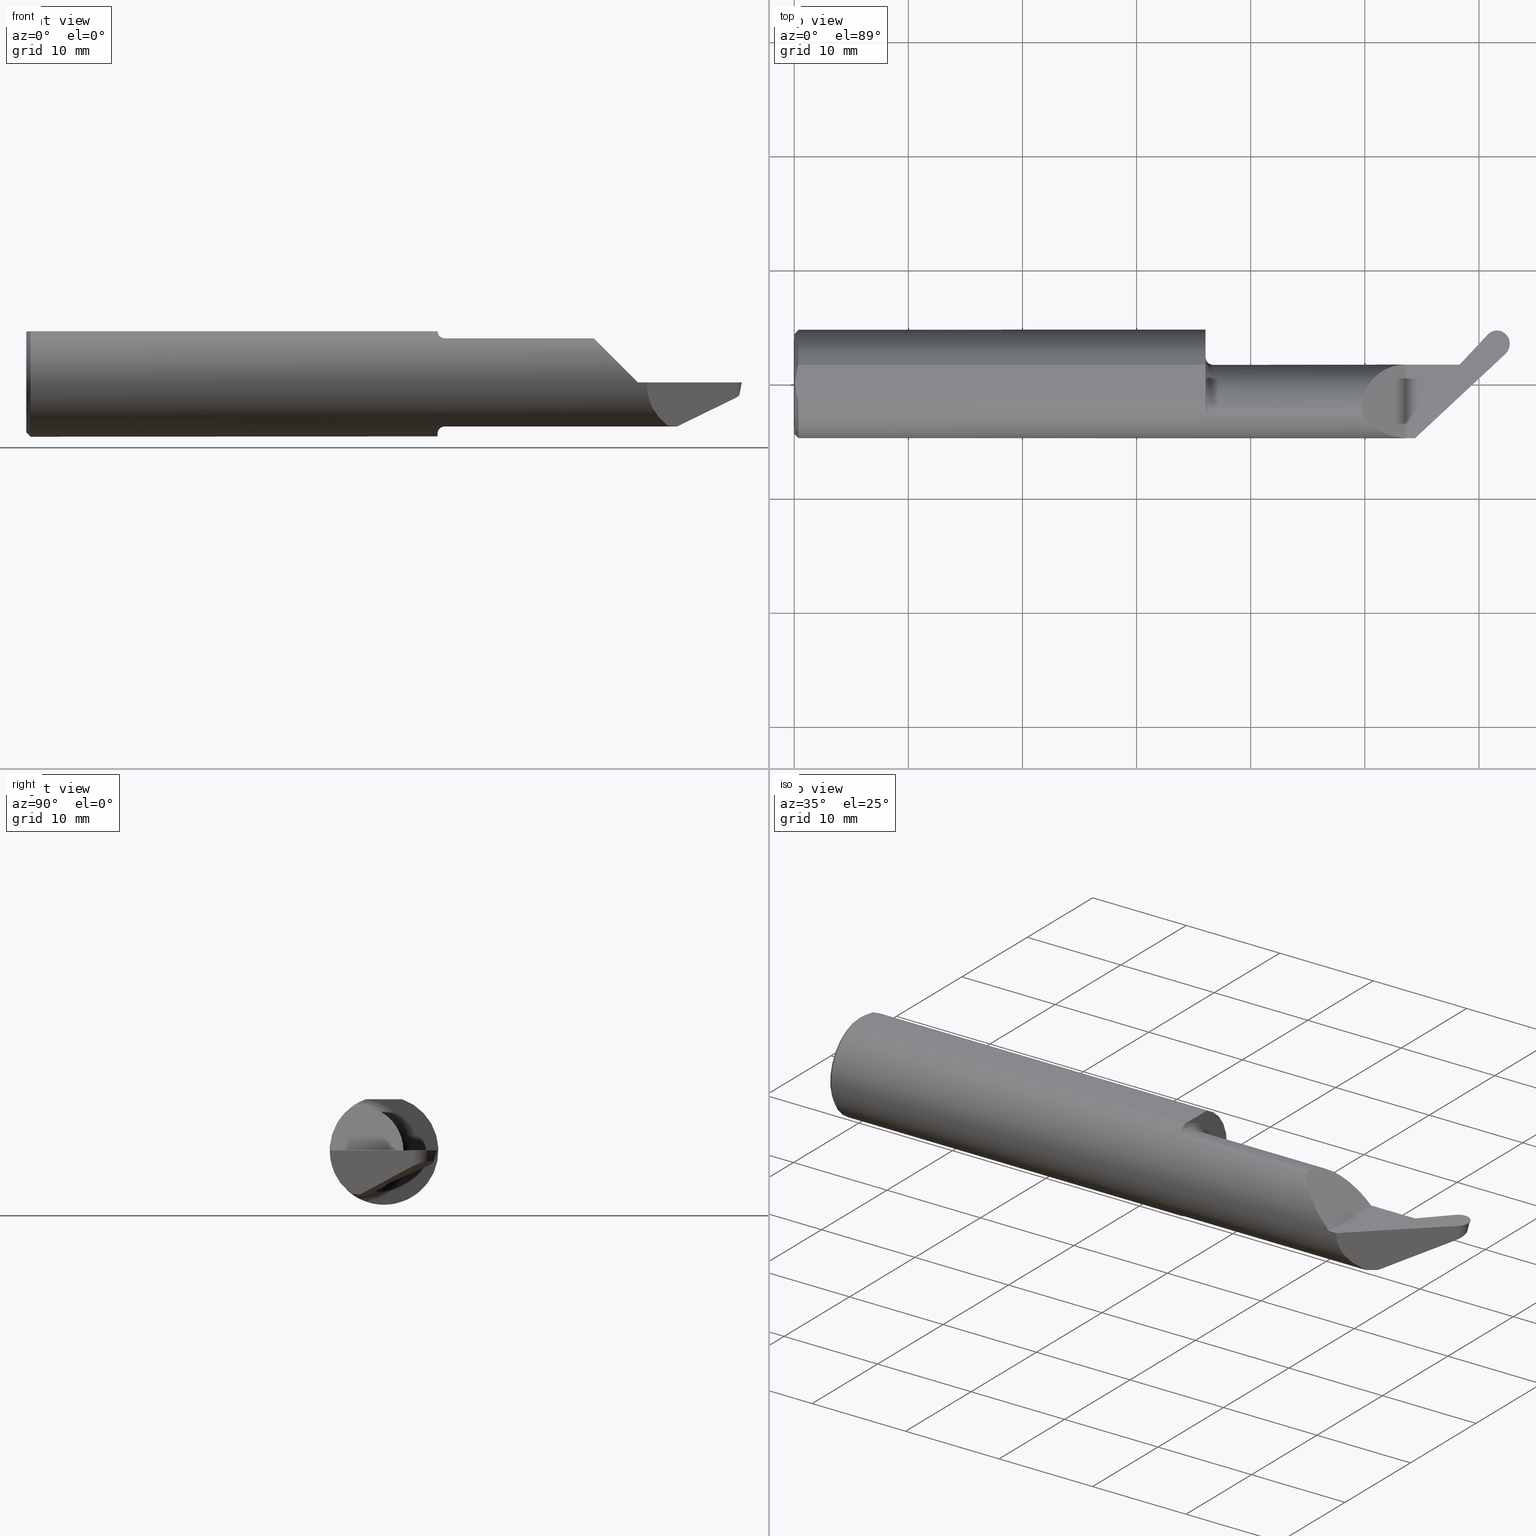
[diagram: canonical four-view strip — front | top / right | iso, engineering-drawing reading convention]
A machine part, canonical four-view strip (front | top / right | iso — engineering-drawing reading convention). The complete STEP part file that produces these views, byte-faithful:
ISO-10303-21;
HEADER;
FILE_DESCRIPTION (( 'STEP AP203' ),
    '1' );
FILE_NAME ('UP37093-16.STEP',
    '2025-06-18T18:18:22',
    ( '' ),
    ( '' ),
    'SwSTEP 2.0',
    'SolidWorks 2024',
    '' );
FILE_SCHEMA (( 'CONFIG_CONTROL_DESIGN' ));
ENDSEC;

DATA;
#1 = CIRCLE ( 'NONE', #787, 0.1519999999999995244 ) ;
#2 = AXIS2_PLACEMENT_3D ( 'NONE', #193, #130, #624 ) ;
#3 = DATE_AND_TIME ( #506, #581 ) ;
#4 = CARTESIAN_POINT ( 'NONE',  ( 1.958000000000002183, -0.08534999999999998144, 0.1519999999999997464 ) ) ;
#5 = CARTESIAN_POINT ( 'NONE',  ( 2.454885715627794784, 0.1042798026993221883, 0.008752761654599549440 ) ) ;
#6 = ORIENTED_EDGE ( 'NONE', *, *, #631, .F. ) ;
#7 = CARTESIAN_POINT ( 'NONE',  ( 2.459150679524237493, 0.1673160262446010960, -4.745349621061711013E-17 ) ) ;
#8 = CARTESIAN_POINT ( 'NONE',  ( 2.521165703784310708, 0.1670629684966413175, -0.01168944187941236591 ) ) ;
#9 = ORIENTED_EDGE ( 'NONE', *, *, #300, .F. ) ;
#10 = FACE_OUTER_BOUND ( 'NONE', #68, .T. ) ;
#11 = CARTESIAN_POINT ( 'NONE',  ( 2.287349474387791570, 0.02598289541875655612, -0.1039642947416341973 ) ) ;
#12 = EDGE_LOOP ( 'NONE', ( #297, #607, #277, #530 ) ) ;
#13 = ADVANCED_FACE ( 'NONE', ( #465 ), #338, .F. ) ;
#14 = CIRCLE ( 'NONE', #332, 0.1769999999999995188 ) ;
#15 = VECTOR ( 'NONE', #666, 39.37007874015748143 ) ;
#16 = CARTESIAN_POINT ( 'NONE',  ( 2.451196188586195923, 0.1021196191854747415, -0.01806203069895944563 ) ) ;
#17 = DIRECTION ( 'NONE',  ( -1.000000000000000000, -0.000000000000000000, -0.000000000000000000 ) ) ;
#18 = LINE ( 'NONE', #274, #645 ) ;
#19 = APPROVAL ( #128, 'UNSPECIFIED' ) ;
#20 = ADVANCED_FACE ( 'NONE', ( #272 ), #149, .F. ) ;
#21 = FACE_OUTER_BOUND ( 'NONE', #393, .T. ) ;
#22 = DIRECTION ( 'NONE',  ( -0.000000000000000000, 0.000000000000000000, -1.000000000000000000 ) ) ;
#23 = ORIENTED_EDGE ( 'NONE', *, *, #700, .F. ) ;
#24 = CARTESIAN_POINT ( 'NONE',  ( 2.446225771526027604, 0.09920948656705549928, -0.05418609209688698969 ) ) ;
#25 = ORIENTED_EDGE ( 'NONE', *, *, #809, .F. ) ;
#26 = VECTOR ( 'NONE', #752, 39.37007874015748143 ) ;
#27 = DIRECTION ( 'NONE',  ( 1.000000000000000000, 0.000000000000000000, 0.000000000000000000 ) ) ;
#28 = CARTESIAN_POINT ( 'NONE',  ( 2.110000000000000320, 0.2000000000000000111, -4.745349621061712245E-17 ) ) ;
#29 = B_SPLINE_CURVE_WITH_KNOTS ( 'NONE', 3,
 ( #567, #369, #703, #380 ),
 .UNSPECIFIED., .F., .F.,
 ( 4, 4 ),
 ( 0.001081723733566367302, 0.001661700673542921419 ),
 .UNSPECIFIED. ) ;
#30 = CARTESIAN_POINT ( 'NONE',  ( 1.418999999999999817, -0.08534999999999998144, 0.000000000000000000 ) ) ;
#31 = DIRECTION ( 'NONE',  ( 0.000000000000000000, 0.000000000000000000, -1.000000000000000000 ) ) ;
#32 = CARTESIAN_POINT ( 'NONE',  ( 1.443999999999999728, -0.08534999999999996756, 0.000000000000000000 ) ) ;
#33 = ORIENTED_EDGE ( 'NONE', *, *, #655, .T. ) ;
#34 = CARTESIAN_POINT ( 'NONE',  ( 1.421184626225752368, -0.08534999999999996756, 0.1667794951425384531 ) ) ;
#35 = CARTESIAN_POINT ( 'NONE',  ( 2.392899935924930777, 0.1681263868925333416, -0.007570097294785150741 ) ) ;
#36 = VERTEX_POINT ( 'NONE', #76 ) ;
#37 = VECTOR ( 'NONE', #167, 39.37007874015748143 ) ;
#38 = CIRCLE ( 'NONE', #117, 0.1519999999999995244 ) ;
#39 = CC_DESIGN_DATE_AND_TIME_ASSIGNMENT ( #187, #751, ( #693 ) ) ;
#40 = EDGE_CURVE ( 'NONE', #625, #160, #151, .T. ) ;
#41 = DIRECTION ( 'NONE',  ( -0.7313537016191670181, -0.6819983600625021403, 0.000000000000000000 ) ) ;
#42 = CARTESIAN_POINT ( 'NONE',  ( 1.418999999999999817, -0.08534999999999998144, 0.000000000000000000 ) ) ;
#43 = ORIENTED_EDGE ( 'NONE', *, *, #413, .T. ) ;
#44 = CC_DESIGN_PERSON_AND_ORGANIZATION_ASSIGNMENT ( #761, #440, ( #204 ) ) ;
#45 = EDGE_CURVE ( 'NONE', #412, #550, #520, .T. ) ;
#46 = CARTESIAN_POINT ( 'NONE',  ( 0.000000000000000000, 0.000000000000000000, 0.000000000000000000 ) ) ;
#47 = CARTESIAN_POINT ( 'NONE',  ( 2.153755892153986995, -0.08534999999998654774, -5.276392632299698409E-15 ) ) ;
#48 = CYLINDRICAL_SURFACE ( 'NONE', #333, 0.1519999999999997464 ) ;
#49 = ORIENTED_EDGE ( 'NONE', *, *, #316, .F. ) ;
#50 = DATE_AND_TIME ( #54, #488 ) ;
#51 = LINE ( 'NONE', #47, #133 ) ;
#52 = CARTESIAN_POINT ( 'NONE',  ( 2.394747466964321614, 0.1604301736729919770, -0.03220164553365447574 ) ) ;
#53 = ORIENTED_EDGE ( 'NONE', *, *, #163, .T. ) ;
#54 = CALENDAR_DATE ( 2025, 18, 6 ) ;
#55 = DIRECTION ( 'NONE',  ( 1.000000000000000000, 0.000000000000000000, 0.000000000000000000 ) ) ;
#56 = CARTESIAN_POINT ( 'NONE',  ( 2.445608297968842937, 0.09884796158474107308, -0.05867377440214429501 ) ) ;
#57 = ORIENTED_EDGE ( 'NONE', *, *, #413, .F. ) ;
#58 = APPROVAL_DATE_TIME ( #50, #663 ) ;
#59 = CARTESIAN_POINT ( 'NONE',  ( 2.412939514550387354, 0.1832132320828752381, -4.745349621061713478E-17 ) ) ;
#60 = CARTESIAN_POINT ( 'NONE',  ( 2.521951229490526636, 0.1676985986409037233, -0.009660369050510892591 ) ) ;
#61 = ORIENTED_EDGE ( 'NONE', *, *, #586, .T. ) ;
#62 = CARTESIAN_POINT ( 'NONE',  ( 2.496112796395680622, 0.1467907062241537719, -0.07640301301703948667 ) ) ;
#63 = ORIENTED_EDGE ( 'NONE', *, *, #445, .T. ) ;
#64 = VECTOR ( 'NONE', #762, 39.37007874015748854 ) ;
#65 = ADVANCED_FACE ( 'NONE', ( #86 ), #403, .F. ) ;
#66 = CARTESIAN_POINT ( 'NONE',  ( 2.462948512015037394, 0.1122332209985757029, -4.745349621061714094E-17 ) ) ;
#67 = CARTESIAN_POINT ( 'NONE',  ( 0.01500000000000079568, 0.06325108694718227509, 0.1763499999999999512 ) ) ;
#68 = EDGE_LOOP ( 'NONE', ( #638, #254, #288, #9 ) ) ;
#69 = ADVANCED_FACE ( 'NONE', ( #391 ), #616, .F. ) ;
#70 = EDGE_CURVE ( 'NONE', #490, #519, #119, .T. ) ;
#71 = CARTESIAN_POINT ( 'NONE',  ( 0.01500000000000079568, 2.294375778202566330E-17, 0.1873499999999999888 ) ) ;
#72 = CARTESIAN_POINT ( 'NONE',  ( 2.458599366377295148, 0.1456769508021118764, -0.03856625705706080015 ) ) ;
#73 = ORIENTED_EDGE ( 'NONE', *, *, #70, .T. ) ;
#74 = CARTESIAN_POINT ( 'NONE',  ( 1.960526878236144244, -0.1129504686584655582, 0.1494731217638575471 ) ) ;
#75 = CARTESIAN_POINT ( 'NONE',  ( 2.428350944621965546, 0.1705695978515894273, -0.03907025931445527039 ) ) ;
#76 = CARTESIAN_POINT ( 'NONE',  ( 1.443999999999999728, -0.08534999999999998144, 0.1519999999999995244 ) ) ;
#77 = B_SPLINE_CURVE_WITH_KNOTS ( 'NONE', 3,
 ( #34, #154, #404, #481, #661, #91, #290, #551 ),
 .UNSPECIFIED., .F., .F.,
 ( 4, 2, 2, 4 ),
 ( 0.0006141256517407871858, 0.001146034975910872715, 0.001411989637995914992, 0.001677944300080957268 ),
 .UNSPECIFIED. ) ;
#78 = CARTESIAN_POINT ( 'NONE',  ( 2.280379455643574360, 0.05827565579094865639, -0.05003292284399111362 ) ) ;
#79 = DIRECTION ( 'NONE',  ( 0.000000000000000000, 0.000000000000000000, 1.000000000000000000 ) ) ;
#80 = LOCAL_TIME ( 11, 18, 22.00000000000000000, #368 ) ;
#81 = EDGE_CURVE ( 'NONE', #479, #699, #335, .T. ) ;
#82 = CARTESIAN_POINT ( 'NONE',  ( 2.280427946748677659, 0.04467455014931607377, -0.07890578795393554667 ) ) ;
#83 = DIRECTION ( 'NONE',  ( 0.7071067811865507924, 0.000000000000000000, -0.7071067811865443531 ) ) ;
#84 = EDGE_LOOP ( 'NONE', ( #169, #474, #801, #754 ) ) ;
#85 = CARTESIAN_POINT ( 'NONE',  ( 2.459020430971324611, 0.1443203766357137319, -0.03883406420091678468 ) ) ;
#86 = FACE_OUTER_BOUND ( 'NONE', #367, .T. ) ;
#87 = CARTESIAN_POINT ( 'NONE',  ( 2.223473614970375323, -0.01130468545544801272, -0.1378432170487052522 ) ) ;
#88 = EDGE_LOOP ( 'NONE', ( #786, #629, #738, #574, #146 ) ) ;
#89 = VECTOR ( 'NONE', #401, 39.37007874015748143 ) ;
#90 =( GEOMETRIC_REPRESENTATION_CONTEXT ( 3 ) GLOBAL_UNCERTAINTY_ASSIGNED_CONTEXT ( ( #664 ) ) GLOBAL_UNIT_ASSIGNED_CONTEXT ( ( #732, #604, #547 ) ) REPRESENTATION_CONTEXT ( 'NONE', 'WORKASPACE' ) );
#91 = CARTESIAN_POINT ( 'NONE',  ( 1.437078532975327727, -0.1115153464561643298, 0.1505664708503502702 ) ) ;
#92 = DIRECTION ( 'NONE',  ( 1.000000000000000000, 0.000000000000000000, 0.000000000000000000 ) ) ;
#93 = CARTESIAN_POINT ( 'NONE',  ( 2.396735570251967928, 0.1521483822026604982, -0.05870732310382809072 ) ) ;
#94 = VERTEX_POINT ( 'NONE', #583 ) ;
#95 = CARTESIAN_POINT ( 'NONE',  ( 0.01500000000000079568, 0.000000000000000000, 0.000000000000000000 ) ) ;
#96 =( BOUNDED_CURVE ( )  B_SPLINE_CURVE ( 3, ( #822, #214, #144, #522 ),
 .UNSPECIFIED., .F., .F. ) 
 B_SPLINE_CURVE_WITH_KNOTS ( ( 4, 4 ),
 ( 1.523084436873743508, 1.538444393020995671 ),
 .UNSPECIFIED. ) 
 CURVE ( )  GEOMETRIC_REPRESENTATION_ITEM ( )  RATIONAL_B_SPLINE_CURVE ( ( 1.000000000000000000, 0.9999803394088983000, 0.9999803394088983000, 1.000000000000000000 ) ) 
 REPRESENTATION_ITEM ( '' )  );
#97 = CARTESIAN_POINT ( 'NONE',  ( 2.448825678150563512, 0.2054731821972624328, -0.06515954289473797900 ) ) ;
#98 = EDGE_LOOP ( 'NONE', ( #819, #695, #532, #773, #379, #611 ) ) ;
#99 = EDGE_CURVE ( 'NONE', #306, #764, #18, .T. ) ;
#100 = CARTESIAN_POINT ( 'NONE',  ( 2.020960461480711956, 0.06664999999999977887, 0.08903953851928939067 ) ) ;
#101 = CARTESIAN_POINT ( 'NONE',  ( 1.939914642328893990, 0.1706011794785972091, -0.1565656573130082274 ) ) ;
#102 = CARTESIAN_POINT ( 'NONE',  ( 2.393467743907949696, 0.1657610835704846630, -0.01514019458999689947 ) ) ;
#103 = ORIENTED_EDGE ( 'NONE', *, *, #784, .F. ) ;
#104 = AXIS2_PLACEMENT_3D ( 'NONE', #392, #711, #453 ) ;
#105 = EDGE_CURVE ( 'NONE', #485, #310, #142, .T. ) ;
#106 = CARTESIAN_POINT ( 'NONE',  ( 2.245806022198207241, -0.08301537846867715342, -0.1519820698053077346 ) ) ;
#107 = CARTESIAN_POINT ( 'NONE',  ( 2.294235200014954845, 0.02365255206875971003, -0.1059921091525870690 ) ) ;
#108 = CARTESIAN_POINT ( 'NONE',  ( 1.443999999999999728, -0.1129504686584654888, -0.1494731217638573251 ) ) ;
#109 = ORIENTED_EDGE ( 'NONE', *, *, #809, .T. ) ;
#110 = PERSON_AND_ORGANIZATION ( #236, #812 ) ;
#111 = CARTESIAN_POINT ( 'NONE',  ( 1.443999999999999728, -0.08534999999999996756, 0.1769999999999995188 ) ) ;
#112 = VERTEX_POINT ( 'NONE', #145 ) ;
#113 = COORDINATED_UNIVERSAL_TIME_OFFSET ( 8, 0, .BEHIND. ) ;
#114 = CARTESIAN_POINT ( 'NONE',  ( 2.421900168475062731, 0.1847030690656938923, -4.745349621061711013E-17 ) ) ;
#115 = ORIENTED_EDGE ( 'NONE', *, *, #300, .T. ) ;
#116 = CIRCLE ( 'NONE', #469, 0.1723499999999993371 ) ;
#117 = AXIS2_PLACEMENT_3D ( 'NONE', #533, #684, #805 ) ;
#118 = CALENDAR_DATE ( 2025, 18, 6 ) ;
#119 = B_SPLINE_CURVE_WITH_KNOTS ( 'NONE', 3,
 ( #331, #579, #16, #523 ),
 .UNSPECIFIED., .F., .F.,
 ( 4, 4 ),
 ( 0.000000000000000000, 1.000000000000000000 ),
 .UNSPECIFIED. ) ;
#120 = CARTESIAN_POINT ( 'NONE',  ( 2.500000000000000000, -0.1873499999999999888, -4.745349621061712245E-17 ) ) ;
#121 = CARTESIAN_POINT ( 'NONE',  ( 2.223516544669093875, -0.1038401262696877492, -0.1511553621332438202 ) ) ;
#122 = ORIENTED_EDGE ( 'NONE', *, *, #591, .T. ) ;
#123 = APPROVAL_ROLE ( '' ) ;
#124 = LINE ( 'NONE', #252, #707 ) ;
#125 = CARTESIAN_POINT ( 'NONE',  ( 1.419675599206763783, -0.07876749217114979718, 0.1701481169429114315 ) ) ;
#126 = ORIENTED_EDGE ( 'NONE', *, *, #363, .T. ) ;
#127 = EDGE_CURVE ( 'NONE', #519, #439, #397, .T. ) ;
#128 = APPROVAL_STATUS ( 'not_yet_approved' ) ;
#129 = CARTESIAN_POINT ( 'NONE',  ( 2.448247125996610318, 0.1779496906190708161, -4.745349621061712862E-17 ) ) ;
#130 = DIRECTION ( 'NONE',  ( 1.000000000000000000, 0.000000000000000000, 0.000000000000000000 ) ) ;
#131 = ORIENTED_EDGE ( 'NONE', *, *, #81, .T. ) ;
#132 = EDGE_CURVE ( 'NONE', #597, #412, #435, .T. ) ;
#133 = VECTOR ( 'NONE', #667, 39.37007874015748854 ) ;
#134 = DIRECTION ( 'NONE',  ( 1.000000000000000000, 0.000000000000000000, 0.000000000000000000 ) ) ;
#135 = CARTESIAN_POINT ( 'NONE',  ( 2.446423912848143978, 0.1968482899797170671, -0.08055657531846696640 ) ) ;
#136 = ORIENTED_EDGE ( 'NONE', *, *, #750, .T. ) ;
#137 = DIRECTION ( 'NONE',  ( -1.000000000000000000, -0.000000000000000000, -0.000000000000000000 ) ) ;
#138 = CARTESIAN_POINT ( 'NONE',  ( 2.399713098308929649, 0.1591182166406401866, -0.04907546537928639263 ) ) ;
#139 = DIRECTION ( 'NONE',  ( 0.6819983600625044717, 0.7313537016191651308, 0.000000000000000000 ) ) ;
#140 = EDGE_CURVE ( 'NONE', #806, #769, #14, .T. ) ;
#141 = CARTESIAN_POINT ( 'NONE',  ( 2.291385060332452817, 0.01870869955985384955, -0.1107961508623450386 ) ) ;
#142 = CIRCLE ( 'NONE', #153, 0.02499999999999993894 ) ;
#143 = VECTOR ( 'NONE', #560, 39.37007874015748143 ) ;
#144 = CARTESIAN_POINT ( 'NONE',  ( 2.244970942544508130, -0.08379353209400738911, -0.1519940231509273043 ) ) ;
#145 = CARTESIAN_POINT ( 'NONE',  ( 0.01500000000000079568, 0.06325108694718227509, 0.1763499999999999512 ) ) ;
#146 = ORIENTED_EDGE ( 'NONE', *, *, #81, .F. ) ;
#147 =( BOUNDED_SURFACE ( )  B_SPLINE_SURFACE ( 3, 3, ( 
 ( #159, #793, #239, #741, #168, #418, #366, #35, #102, #52, #293, #219, #355, #795, #468, #93 ),
 ( #156, #224, #406, #665, #596, #473, #734, #544, #669, #606, #97, #599, #800, #230, #478, #135 ),
 ( #60, #8, #250, #573, #704, #264, #314, #620, #323, #763, #513, #818, #62, #309, #197, #561 ),
 ( #253, #558, #634, #5, #378, #370, #318, #628, #189, #177, #569, #427, #381, #698, #56, #772 ) ),
 .UNSPECIFIED., .F., .F., .T. ) 
 B_SPLINE_SURFACE_WITH_KNOTS ( ( 4, 4 ),
 ( 4, 2, 2, 2, 2, 2, 2, 4 ),
 ( 0.000000000000000000, 1.000000000000000000 ),
 ( -0.1149102621501979504, 0.05419333950053090848, 0.3840124798750207957, 0.4537189467001905840, 1.018741651984962582, 1.727164556792686101, 1.745229356007819366, 1.914332957658548162 ),
 .UNSPECIFIED. ) 
 GEOMETRIC_REPRESENTATION_ITEM ( )  RATIONAL_B_SPLINE_SURFACE ( (
 ( 1.000000000000000000, 1.000000000000000000, 1.000000000000000000, 1.000000000000000000, 1.000000000000000000, 1.000000000000000000, 1.000000000000000000, 1.000000000000000000, 1.000000000000000000, 1.000000000000000000, 1.000000000000000000, 1.000000000000000000, 1.000000000000000000, 1.000000000000000000, 1.000000000000000000, 1.000000000000000000),
 ( 0.3426147761147471105, 0.3426147761147471105, 0.3426147761147429471, 0.3426147761147429471, 0.3426147761147361193, 0.3426147761147361193, 0.3426147761147408932, 0.3426147761147408932, 0.3426147761147466664, 0.3426147761147466664, 0.3426147761147368964, 0.3426147761147368964, 0.3426147761147223525, 0.3426147761147223525, 0.3426147761147453341, 0.3426147761147453341),
 ( 0.3426147761147471105, 0.3426147761147471105, 0.3426147761147429471, 0.3426147761147429471, 0.3426147761147361193, 0.3426147761147361193, 0.3426147761147408932, 0.3426147761147408932, 0.3426147761147466664, 0.3426147761147466664, 0.3426147761147368964, 0.3426147761147368964, 0.3426147761147223525, 0.3426147761147223525, 0.3426147761147453341, 0.3426147761147453341),
 ( 1.000000000000000000, 1.000000000000000000, 1.000000000000000000, 1.000000000000000000, 1.000000000000000000, 1.000000000000000000, 1.000000000000000000, 1.000000000000000000, 1.000000000000000000, 1.000000000000000000, 1.000000000000000000, 1.000000000000000000, 1.000000000000000000, 1.000000000000000000, 1.000000000000000000, 1.000000000000000000) ) ) 
 REPRESENTATION_ITEM ( '' )  SURFACE ( )  );
#148 = CARTESIAN_POINT ( 'NONE',  ( 2.287202422033008276, 0.06572839334873611938, -0.01965257165043610491 ) ) ;
#149 = PLANE ( 'NONE',  #774 ) ;
#150 = CARTESIAN_POINT ( 'NONE',  ( 2.279583975438843169, 0.04989058623087169742, -0.06958800794744457452 ) ) ;
#151 = LINE ( 'NONE', #644, #89 ) ;
#152 = ADVANCED_FACE ( 'NONE', ( #609 ), #233, .F. ) ;
#153 = AXIS2_PLACEMENT_3D ( 'NONE', #208, #460, #718 ) ;
#154 = CARTESIAN_POINT ( 'NONE',  ( 1.422585190695227597, -0.09145938470227693573, 0.1636529957854460648 ) ) ;
#155 = CARTESIAN_POINT ( 'NONE',  ( 1.443999999999999728, -0.1129504686584655998, 0.1494731217638572973 ) ) ;
#156 = CARTESIAN_POINT ( 'NONE',  ( 2.457937397573102256, 0.2381939471520527485, -0.006746908136165478444 ) ) ;
#157 = CARTESIAN_POINT ( 'NONE',  ( 0.000000000000000000, 0.000000000000000000, 0.000000000000000000 ) ) ;
#158 = CARTESIAN_POINT ( 'NONE',  ( 0.01500000000000079568, 0.000000000000000000, 0.000000000000000000 ) ) ;
#159 = CARTESIAN_POINT ( 'NONE',  ( 2.390617831147370698, 0.1776328929169055382, 0.02285525021654910907 ) ) ;
#160 = VERTEX_POINT ( 'NONE', #740 ) ;
#161 = CC_DESIGN_PERSON_AND_ORGANIZATION_ASSIGNMENT ( #500, #755, ( #450 ) ) ;
#162 = DIRECTION ( 'NONE',  ( -1.000000000000000000, -0.000000000000000000, -0.000000000000000000 ) ) ;
#163 = EDGE_CURVE ( 'NONE', #412, #203, #51, .T. ) ;
#164 = CARTESIAN_POINT ( 'NONE',  ( 0.000000000000000000, 0.000000000000000000, -0.1723499999999993371 ) ) ;
#165 = ORIENTED_EDGE ( 'NONE', *, *, #387, .F. ) ;
#166 = DIRECTION ( 'NONE',  ( 0.000000000000000000, 0.000000000000000000, 1.000000000000000000 ) ) ;
#167 = DIRECTION ( 'NONE',  ( -0.5714394396463809978, -0.7466176790596431578, -0.3406156310744149485 ) ) ;
#168 = CARTESIAN_POINT ( 'NONE',  ( 2.391790532705093231, 0.1727477997636944762, 0.007220625210338631542 ) ) ;
#169 = ORIENTED_EDGE ( 'NONE', *, *, #820, .T. ) ;
#170 = AXIS2_PLACEMENT_3D ( 'NONE', #95, #729, #405 ) ;
#171 = CARTESIAN_POINT ( 'NONE',  ( 2.500000000000000000, 0.06325108694718227509, 0.1763499999999999512 ) ) ;
#172 = FACE_OUTER_BOUND ( 'NONE', #302, .T. ) ;
#173 = CARTESIAN_POINT ( 'NONE',  ( 1.429783483830883162, -0.1051624633615447779, -0.1550820948667110122 ) ) ;
#174 = EDGE_LOOP ( 'NONE', ( #342, #685, #282, #61, #776, #670 ) ) ;
#175 = PERSON_AND_ORGANIZATION_ROLE ( 'creator' ) ;
#176 = CARTESIAN_POINT ( 'NONE',  ( 2.464046142391617789, 0.1595728746997062963, -4.745349621061710396E-17 ) ) ;
#177 = CARTESIAN_POINT ( 'NONE',  ( 2.448911487325831526, 0.1007819480040389598, -0.03466681206971942292 ) ) ;
#178 = EDGE_LOOP ( 'NONE', ( #23, #231, #53 ) ) ;
#179 = APPROVAL_DATE_TIME ( #563, #19 ) ;
#180 = LINE ( 'NONE', #430, #184 ) ;
#181 = DIRECTION ( 'NONE',  ( 1.000000000000000000, -0.000000000000000000, -0.000000000000000000 ) ) ;
#182 = ORIENTED_EDGE ( 'NONE', *, *, #336, .F. ) ;
#183 = CLOSED_SHELL ( 'NONE', ( #534, #458, #278, #780, #650, #546, #280, #477, #686, #289, #20, #510, #720, #195, #69, #375, #247, #13, #65, #152 ) ) ;
#184 = VECTOR ( 'NONE', #814, 39.37007874015748143 ) ;
#185 =( BOUNDED_CURVE ( )  B_SPLINE_CURVE ( 3, ( #657, #237, #100, #221 ),
 .UNSPECIFIED., .F., .T. ) 
 B_SPLINE_CURVE_WITH_KNOTS ( ( 4, 4 ),
 ( 0.000000000000000000, 1.570796326794896780 ),
 .UNSPECIFIED. ) 
 CURVE ( )  GEOMETRIC_REPRESENTATION_ITEM ( )  RATIONAL_B_SPLINE_CURVE ( ( 1.000000000000000000, 0.8047378541243649375, 0.8047378541243649375, 1.000000000000000000 ) ) 
 REPRESENTATION_ITEM ( '' )  );
#186 = LOCAL_TIME ( 11, 18, 22.00000000000000000, #682 ) ;
#187 = DATE_AND_TIME ( #118, #186 ) ;
#188 = CARTESIAN_POINT ( 'NONE',  ( 1.418999999999999817, -0.06325108694718373226, 0.1763499999999999512 ) ) ;
#189 = CARTESIAN_POINT ( 'NONE',  ( 2.451236449606474910, 0.1021431916356207170, -0.01776942113499141093 ) ) ;
#190 = ORIENTED_EDGE ( 'NONE', *, *, #357, .T. ) ;
#191 = EDGE_CURVE ( 'NONE', #479, #94, #116, .T. ) ;
#192 = CARTESIAN_POINT ( 'NONE',  ( 1.869749092623466558, -0.1129504686584655859, 0.1494731217638575194 ) ) ;
#193 = CARTESIAN_POINT ( 'NONE',  ( 1.418999999999999817, 0.000000000000000000, 0.000000000000000000 ) ) ;
#194 = ORIENTED_EDGE ( 'NONE', *, *, #132, .T. ) ;
#195 = ADVANCED_FACE ( 'NONE', ( #613 ), #759, .T. ) ;
#196 = CARTESIAN_POINT ( 'NONE',  ( 2.453681397116281637, 0.1035746854946826417, 0.000000000000000000 ) ) ;
#197 = CARTESIAN_POINT ( 'NONE',  ( 2.494457829773934598, 0.1454515435916331756, -0.08067791806323793002 ) ) ;
#198 = ORIENTED_EDGE ( 'NONE', *, *, #747, .F. ) ;
#199 = AXIS2_PLACEMENT_3D ( 'NONE', #792, #653, #585 ) ;
#200 = DIRECTION ( 'NONE',  ( 1.000000000000000000, -0.000000000000000000, -0.000000000000000000 ) ) ;
#201 = APPLICATION_CONTEXT ( 'configuration controlled 3d designs of mechanical parts and assemblies' ) ;
#202 = CARTESIAN_POINT ( 'NONE',  ( 2.456003116891178006, 0.1521348115047598260, -0.03743375476588426537 ) ) ;
#203 = VERTEX_POINT ( 'NONE', #672 ) ;
#204 = PRODUCT ( 'UP37093-16', 'UP37093-16', '', ( #496 ) ) ;
#205 = CARTESIAN_POINT ( 'NONE',  ( 2.283095476919919875, 0.06268864236261705025, -0.03486095946414631552 ) ) ;
#206 = DIRECTION ( 'NONE',  ( 0.6819983600625153519, 0.7313537016191545836, 0.000000000000000000 ) ) ;
#207 = CARTESIAN_POINT ( 'NONE',  ( 2.279473615810516218, 0.05227606614710268024, -0.06473972895884107237 ) ) ;
#208 = CARTESIAN_POINT ( 'NONE',  ( 1.443999999999999728, -0.08534999999999995368, -0.1769999999999995188 ) ) ;
#209 = CIRCLE ( 'NONE', #602, 0.02499999999999993894 ) ;
#210 = AXIS2_PLACEMENT_3D ( 'NONE', #710, #137, #489 ) ;
#211 = CARTESIAN_POINT ( 'NONE',  ( 2.451196296478645120, 0.1587645320313626762, -0.03678629298813253928 ) ) ;
#212 = ORIENTED_EDGE ( 'NONE', *, *, #590, .F. ) ;
#213 = EDGE_CURVE ( 'NONE', #758, #203, #556, .T. ) ;
#214 = CARTESIAN_POINT ( 'NONE',  ( 2.244136095074108272, -0.08457175457142981911, -0.1519999999999997464 ) ) ;
#215 = EDGE_LOOP ( 'NONE', ( #499, #448, #115 ) ) ;
#216 = EDGE_CURVE ( 'NONE', #690, #310, #299, .T. ) ;
#217 = DIRECTION ( 'NONE',  ( 0.000000000000000000, 0.000000000000000000, -1.000000000000000000 ) ) ;
#218 = CARTESIAN_POINT ( 'NONE',  ( 0.004000000000000662748, 2.159664630158893524E-17, 0.1763499999999999512 ) ) ;
#219 = CARTESIAN_POINT ( 'NONE',  ( 2.396189450960739986, 0.1544233374909765866, -0.05142638255195834673 ) ) ;
#220 = AXIS2_PLACEMENT_3D ( 'NONE', #340, #641, #79 ) ;
#221 = CARTESIAN_POINT ( 'NONE',  ( 2.110000000000000320, 0.06664999999999975111, -4.745349621061712245E-17 ) ) ;
#222 = DIRECTION ( 'NONE',  ( 0.000000000000000000, 0.000000000000000000, -1.000000000000000000 ) ) ;
#223 = AXIS2_PLACEMENT_3D ( 'NONE', #582, #17, #459 ) ;
#224 = CARTESIAN_POINT ( 'NONE',  ( 2.457617578552935722, 0.2370454566750014036, -0.008797176669008742803 ) ) ;
#225 = EDGE_LOOP ( 'NONE', ( #600, #735, #265, #796, #103 ) ) ;
#226 = B_SPLINE_CURVE_WITH_KNOTS ( 'NONE', 3,
 ( #108, #614, #810, #423, #173, #484, #411, #737 ),
 .UNSPECIFIED., .F., .F.,
 ( 4, 2, 2, 4 ),
 ( 1.968246507312795868E-07, 0.0002705785518796402912, 0.0005409602791085493670, 0.001081723733566367302 ),
 .UNSPECIFIED. ) ;
#227 = EDGE_CURVE ( 'NONE', #593, #36, #209, .T. ) ;
#228 = LINE ( 'NONE', #414, #540 ) ;
#229 = FACE_OUTER_BOUND ( 'NONE', #178, .T. ) ;
#230 = CARTESIAN_POINT ( 'NONE',  ( 2.447063550888431305, 0.1991452709337832583, -0.07645603825279598253 ) ) ;
#231 = ORIENTED_EDGE ( 'NONE', *, *, #45, .F. ) ;
#232 = DIRECTION ( 'NONE',  ( 0.000000000000000000, 0.000000000000000000, -1.000000000000000000 ) ) ;
#233 = PLANE ( 'NONE',  #431 ) ;
#234 = CARTESIAN_POINT ( 'NONE',  ( 2.110000000000000320, -0.1873500000000000165, -4.745349621061712245E-17 ) ) ;
#235 = VERTEX_POINT ( 'NONE', #155 ) ;
#236 = PERSON ( 'UNSPECIFIED', 'UNSPECIFIED', 'UNSPECIFIED', ('UNSPECIFIED'), ('UNSPECIFIED'), ('UNSPECIFIED') ) ;
#237 = CARTESIAN_POINT ( 'NONE',  ( 1.958000000000001961, 0.003689538519289418776, 0.1519999999999997464 ) ) ;
#238 = CARTESIAN_POINT ( 'NONE',  ( 2.245806022198207241, -0.08301537846867715342, -0.1519820698053077346 ) ) ;
#239 = CARTESIAN_POINT ( 'NONE',  ( 2.390957705542074319, 0.1762170867661503881, 0.01832399614327768350 ) ) ;
#240 = ORIENTED_EDGE ( 'NONE', *, *, #191, .T. ) ;
#241 = AXIS2_PLACEMENT_3D ( 'NONE', #291, #162, #295 ) ;
#242 = CC_DESIGN_APPROVAL ( #663, ( #693 ) ) ;
#243 =( BOUNDED_CURVE ( )  B_SPLINE_CURVE ( 3, ( #432, #121, #442, #694 ),
 .UNSPECIFIED., .F., .T. ) 
 B_SPLINE_CURVE_WITH_KNOTS ( ( 4, 4 ),
 ( 1.340489448569094577, 1.523084436873743508 ),
 .UNSPECIFIED. ) 
 CURVE ( )  GEOMETRIC_REPRESENTATION_ITEM ( )  RATIONAL_B_SPLINE_CURVE ( ( 1.000000000000000000, 0.9972235185427065218, 0.9972235185427065218, 1.000000000000000000 ) ) 
 REPRESENTATION_ITEM ( '' )  );
#244 = LINE ( 'NONE', #501, #64 ) ;
#245 = CARTESIAN_POINT ( 'NONE',  ( 2.291385060332452817, 0.01870869955985384955, -0.1107961508623450386 ) ) ;
#246 = VERTEX_POINT ( 'NONE', #238 ) ;
#247 = ADVANCED_FACE ( 'NONE', ( #172 ), #595, .F. ) ;
#248 = APPLICATION_PROTOCOL_DEFINITION ( 'international standard', 'config_control_design', 1994, #311 ) ;
#249 = CARTESIAN_POINT ( 'NONE',  ( 2.409969705838291176, 0.1822624000708659986, -4.745349621061712245E-17 ) ) ;
#250 = CARTESIAN_POINT ( 'NONE',  ( 2.520380178078140965, 0.1664273383523504624, -0.01371851470840143930 ) ) ;
#251 = ORIENTED_EDGE ( 'NONE', *, *, #668, .F. ) ;
#252 = CARTESIAN_POINT ( 'NONE',  ( 1.869749092623466558, -0.1129504686584655859, -0.1494731217638575194 ) ) ;
#253 = CARTESIAN_POINT ( 'NONE',  ( 2.456414085219277066, 0.1051746487750703785, 0.01986066593988654316 ) ) ;
#254 = ORIENTED_EDGE ( 'NONE', *, *, #626, .F. ) ;
#255 = AXIS2_PLACEMENT_3D ( 'NONE', #422, #736, #472 ) ;
#256 = VECTOR ( 'NONE', #55, 39.37007874015748143 ) ;
#257 = EDGE_CURVE ( 'NONE', #235, #36, #1, .T. ) ;
#258 = APPROVAL_ROLE ( '' ) ;
#259 = CARTESIAN_POINT ( 'NONE',  ( 2.418877000881054062, 0.1844214487105629297, -4.745349621061712245E-17 ) ) ;
#260 = CARTESIAN_POINT ( 'NONE',  ( 1.418999999999999817, 0.06325108694718227509, 0.1763499999999999512 ) ) ;
#261 = VERTEX_POINT ( 'NONE', #218 ) ;
#262 = APPLICATION_PROTOCOL_DEFINITION ( 'international standard', 'config_control_design', 1994, #201 ) ;
#263 = LINE ( 'NONE', #618, #256 ) ;
#264 = CARTESIAN_POINT ( 'NONE',  ( 2.514674588855074333, 0.1618105008989412785, -0.02845648696609797204 ) ) ;
#265 = ORIENTED_EDGE ( 'NONE', *, *, #571, .T. ) ;
#266 = CARTESIAN_POINT ( 'NONE',  ( 2.213833035312449127, -0.1129504686584655859, -0.1494731217638575194 ) ) ;
#267 = CARTESIAN_POINT ( 'NONE',  ( 2.453789742755607683, 0.1555754821407100419, -0.03703007545322636179 ) ) ;
#268 = EDGE_LOOP ( 'NONE', ( #675, #324, #621 ) ) ;
#269 = CIRCLE ( 'NONE', #731, 0.1873499999999999888 ) ;
#270 = APPROVAL_PERSON_ORGANIZATION ( #612, #663, #258 ) ;
#271 = CARTESIAN_POINT ( 'NONE',  ( 2.213833035312449127, -0.1129504686584655859, -0.1494731217638575194 ) ) ;
#272 = FACE_OUTER_BOUND ( 'NONE', #635, .T. ) ;
#273 = CARTESIAN_POINT ( 'NONE',  ( 2.450184155637620265, 0.1598775100054309062, -0.03672696096518343611 ) ) ;
#274 = CARTESIAN_POINT ( 'NONE',  ( 2.110000000000000320, 0.2000000000000000111, -4.745349621061712245E-17 ) ) ;
#275 = CARTESIAN_POINT ( 'NONE',  ( 2.295498185246933165, 0.01630758347669121477, -0.1130032553587707322 ) ) ;
#276 = CARTESIAN_POINT ( 'NONE',  ( 0.01500000000000079568, 0.000000000000000000, -0.1873499999999999888 ) ) ;
#277 = ORIENTED_EDGE ( 'NONE', *, *, #99, .T. ) ;
#278 = ADVANCED_FACE ( 'NONE', ( #407 ), #528, .T. ) ;
#279 = CIRCLE ( 'NONE', #241, 0.1519999999999995244 ) ;
#280 = ADVANCED_FACE ( 'NONE', ( #229 ), #744, .T. ) ;
#281 = CARTESIAN_POINT ( 'NONE',  ( 2.279873855441354902, 0.05645629897935491859, -0.05498308975101971752 ) ) ;
#282 = ORIENTED_EDGE ( 'NONE', *, *, #140, .F. ) ;
#283 = CARTESIAN_POINT ( 'NONE',  ( 1.958844637866757887, -0.1038401262696877492, 0.1511553621332438202 ) ) ;
#284 = ORIENTED_EDGE ( 'NONE', *, *, #99, .F. ) ;
#285 = DIRECTION ( 'NONE',  ( -1.000000000000000000, -0.000000000000000000, -0.000000000000000000 ) ) ;
#286 = FACE_OUTER_BOUND ( 'NONE', #225, .T. ) ;
#287 = DIRECTION ( 'NONE',  ( -1.000000000000000000, -0.000000000000000000, -0.000000000000000000 ) ) ;
#288 = ORIENTED_EDGE ( 'NONE', *, *, #362, .T. ) ;
#289 = ADVANCED_FACE ( 'NONE', ( #286 ), #794, .F. ) ;
#290 = CARTESIAN_POINT ( 'NONE',  ( 1.440386741880977040, -0.1129504686584707901, 0.1494731217638536336 ) ) ;
#291 = CARTESIAN_POINT ( 'NONE',  ( 1.443999999999999728, -0.08534999999999998144, 0.000000000000000000 ) ) ;
#292 = VECTOR ( 'NONE', #531, 39.37007874015748143 ) ;
#293 = CARTESIAN_POINT ( 'NONE',  ( 2.395459382037755436, 0.1574645670975350353, -0.04169299918235288421 ) ) ;
#294 = EDGE_LOOP ( 'NONE', ( #6, #346, #399, #386, #527, #126, #566, #194, #545, #25 ) ) ;
#295 = DIRECTION ( 'NONE',  ( 0.000000000000000000, 0.000000000000000000, 1.000000000000000000 ) ) ;
#296 = DIRECTION ( 'NONE',  ( -1.000000000000000000, -0.000000000000000000, -0.000000000000000000 ) ) ;
#297 = ORIENTED_EDGE ( 'NONE', *, *, #820, .F. ) ;
#298 = CARTESIAN_POINT ( 'NONE',  ( 1.418999999999999817, -0.06476652021089729372, -0.1757990908957478837 ) ) ;
#299 = LINE ( 'NONE', #552, #502 ) ;
#300 = EDGE_CURVE ( 'NONE', #310, #562, #279, .T. ) ;
#301 = FACE_OUTER_BOUND ( 'NONE', #215, .T. ) ;
#302 = EDGE_LOOP ( 'NONE', ( #57, #73, #588, #723, #361, #658 ) ) ;
#303 = DIRECTION ( 'NONE',  ( 0.000000000000000000, 0.000000000000000000, 1.000000000000000000 ) ) ;
#304 = EDGE_CURVE ( 'NONE', #485, #769, #29, .T. ) ;
#305 = CARTESIAN_POINT ( 'NONE',  ( 1.421184626225752368, -0.08534999999999996756, 0.1667794951425384531 ) ) ;
#306 = VERTEX_POINT ( 'NONE', #548 ) ;
#307 = SHAPE_DEFINITION_REPRESENTATION ( #716, #713 ) ;
#308 = CARTESIAN_POINT ( 'NONE',  ( 2.392332127941882547, 0.1704916902143812918, -4.745349621061712245E-17 ) ) ;
#309 = CARTESIAN_POINT ( 'NONE',  ( 2.495243355480035508, 0.1460871737359009936, -0.07864884523425585972 ) ) ;
#310 = VERTEX_POINT ( 'NONE', #322 ) ;
#311 = APPLICATION_CONTEXT ( 'configuration controlled 3d designs of mechanical parts and assemblies' ) ;
#312 = APPROVAL_DATE_TIME ( #687, #630 ) ;
#313 = CARTESIAN_POINT ( 'NONE',  ( 2.295498185246933165, 0.02599910668799065849, -0.1034667890668074935 ) ) ;
#314 = CARTESIAN_POINT ( 'NONE',  ( 2.514350786043994646, 0.1615484867778347045, -0.02929289433089315650 ) ) ;
#315 = ORIENTED_EDGE ( 'NONE', *, *, #398, .T. ) ;
#316 = EDGE_CURVE ( 'NONE', #160, #758, #554, .T. ) ;
#317 = CARTESIAN_POINT ( 'NONE',  ( 0.01500000000000079568, 0.000000000000000000, 0.000000000000000000 ) ) ;
#318 = CARTESIAN_POINT ( 'NONE',  ( 2.453426867351047758, 0.1034256607019544694, -0.001849874719884204814 ) ) ;
#319 = ORIENTED_EDGE ( 'NONE', *, *, #724, .T. ) ;
#320 = AXIS2_PLACEMENT_3D ( 'NONE', #493, #134, #756 ) ;
#321 = SECURITY_CLASSIFICATION_LEVEL ( 'unclassified' ) ;
#322 = CARTESIAN_POINT ( 'NONE',  ( 1.443999999999999728, -0.08534999999999996756, -0.1519999999999995244 ) ) ;
#323 = CARTESIAN_POINT ( 'NONE',  ( 2.508777658496503804, 0.1570388344021776961, -0.04368870797484589868 ) ) ;
#324 = ORIENTED_EDGE ( 'NONE', *, *, #747, .T. ) ;
#325 =( BOUNDED_CURVE ( )  B_SPLINE_CURVE ( 3, ( #271, #529, #725, #775 ),
 .UNSPECIFIED., .F., .T. ) 
 B_SPLINE_CURVE_WITH_KNOTS ( ( 4, 4 ),
 ( 5.407212885630066523, 6.330897197100739504 ),
 .UNSPECIFIED. ) 
 CURVE ( )  GEOMETRIC_REPRESENTATION_ITEM ( )  RATIONAL_B_SPLINE_CURVE ( ( 1.000000000000000000, 0.9301554373620524174, 0.9301554373620524174, 1.000000000000000000 ) ) 
 REPRESENTATION_ITEM ( '' )  );
#326 = LINE ( 'NONE', #192, #143 ) ;
#327 = CARTESIAN_POINT ( 'NONE',  ( 2.290939857652344536, 0.06665000000000032010, -0.009735860034133701768 ) ) ;
#328 = ORIENTED_EDGE ( 'NONE', *, *, #656, .T. ) ;
#329 = B_SPLINE_CURVE_WITH_KNOTS ( 'NONE', 3,
 ( #464, #327, #148, #205, #455, #78, #281, #207, #150, #82, #714, #576, #11, #141 ),
 .UNSPECIFIED., .F., .F.,
 ( 4, 2, 2, 2, 2, 2, 4 ),
 ( 4.909446767476300298E-17, 0.0008101701905472911925, 0.001215255285820915051, 0.001620340381094539017, 0.002025425476368162767, 0.002430510571641786733, 0.003240680762189030329 ),
 .UNSPECIFIED. ) ;
#330 = CARTESIAN_POINT ( 'NONE',  ( 2.433648047847662532, 0.1698141983444505232, -0.03800145859100609314 ) ) ;
#331 = CARTESIAN_POINT ( 'NONE',  ( 2.446225771526027604, 0.09920948656705549928, -0.05418609209688698969 ) ) ;
#332 = AXIS2_PLACEMENT_3D ( 'NONE', #733, #359, #365 ) ;
#333 = AXIS2_PLACEMENT_3D ( 'NONE', #42, #296, #549 ) ;
#334 = CYLINDRICAL_SURFACE ( 'NONE', #223, 0.1873499999999999888 ) ;
#335 = LINE ( 'NONE', #276, #568 ) ;
#336 = EDGE_CURVE ( 'NONE', #94, #261, #821, .T. ) ;
#337 = CARTESIAN_POINT ( 'NONE',  ( 2.448165876568585198, 0.1618328681975925443, -0.03668047843463439345 ) ) ;
#338 = PLANE ( 'NONE',  #449 ) ;
#339 = CARTESIAN_POINT ( 'NONE',  ( 2.460727241279450528, 0.1377199621774172489, -0.04021932718904294018 ) ) ;
#340 = CARTESIAN_POINT ( 'NONE',  ( 1.443999999999999728, -0.08534999999999996756, 0.000000000000000000 ) ) ;
#341 = CARTESIAN_POINT ( 'NONE',  ( 1.960526878236144244, -0.1129504686584655582, 0.1494731217638575471 ) ) ;
#342 = ORIENTED_EDGE ( 'NONE', *, *, #105, .F. ) ;
#343 = CARTESIAN_POINT ( 'NONE',  ( 1.418999999999999817, 0.000000000000000000, 0.000000000000000000 ) ) ;
#344 = CARTESIAN_POINT ( 'NONE',  ( 2.291385060332452817, 0.01870869955985384955, -0.1107961508623450386 ) ) ;
#345 = CARTESIAN_POINT ( 'NONE',  ( 1.421184626225752368, -0.08534999999999995368, -0.1667794951425384531 ) ) ;
#346 = ORIENTED_EDGE ( 'NONE', *, *, #216, .T. ) ;
#347 = CARTESIAN_POINT ( 'NONE',  ( 1.958000000000002183, -0.08534999999999998144, 0.1519999999999997464 ) ) ;
#348 = CARTESIAN_POINT ( 'NONE',  ( 0.000000000000000000, 0.1000000000000000056, 0.1763499999999999512 ) ) ;
#349 = DIRECTION ( 'NONE',  ( -0.7071067811865434649, 0.000000000000000000, 0.7071067811865515695 ) ) ;
#350 = VERTEX_POINT ( 'NONE', #4 ) ;
#351 = VECTOR ( 'NONE', #41, 39.37007874015748143 ) ;
#352 = CARTESIAN_POINT ( 'NONE',  ( 1.960526878236144244, -0.1129504686584655582, 0.1494731217638575471 ) ) ;
#353 = CARTESIAN_POINT ( 'NONE',  ( 2.292863629530563330, 0.02122147899315567424, -0.1084361721259468891 ) ) ;
#354 = CIRCLE ( 'NONE', #2, 0.1873499999999999888 ) ;
#355 = CARTESIAN_POINT ( 'NONE',  ( 2.396207604810328462, 0.1543477144599116335, -0.05166841227287741894 ) ) ;
#356 = ORIENTED_EDGE ( 'NONE', *, *, #591, .F. ) ;
#357 = EDGE_CURVE ( 'NONE', #519, #160, #660, .T. ) ;
#358 = DIRECTION ( 'NONE',  ( -1.000000000000000000, -0.000000000000000000, -0.000000000000000000 ) ) ;
#359 = DIRECTION ( 'NONE',  ( -1.000000000000000000, -0.000000000000000000, -0.000000000000000000 ) ) ;
#360 = DIRECTION ( 'NONE',  ( 0.000000000000000000, 0.000000000000000000, 1.000000000000000000 ) ) ;
#361 = ORIENTED_EDGE ( 'NONE', *, *, #626, .T. ) ;
#362 = EDGE_CURVE ( 'NONE', #454, #562, #124, .T. ) ;
#363 = EDGE_CURVE ( 'NONE', #764, #625, #263, .T. ) ;
#364 = COORDINATED_UNIVERSAL_TIME_OFFSET ( 8, 0, .BEHIND. ) ;
#365 = DIRECTION ( 'NONE',  ( 0.000000000000000000, 0.000000000000000000, 1.000000000000000000 ) ) ;
#366 = CARTESIAN_POINT ( 'NONE',  ( 2.392262077857232327, 0.1707834960763286447, 0.0009339177541141027977 ) ) ;
#367 = EDGE_LOOP ( 'NONE', ( #212, #251 ) ) ;
#368 = COORDINATED_UNIVERSAL_TIME_OFFSET ( 8, 0, .BEHIND. ) ;
#369 = CARTESIAN_POINT ( 'NONE',  ( 1.419680673000415894, -0.07878962450278849394, -0.1701367906434539390 ) ) ;
#370 = CARTESIAN_POINT ( 'NONE',  ( 2.453554132233662699, 0.1035001730983164808, -0.0009249373599302572815 ) ) ;
#371 = ORIENTED_EDGE ( 'NONE', *, *, #40, .F. ) ;
#372 = AXIS2_PLACEMENT_3D ( 'NONE', #157, #466, #217 ) ;
#373 = DIRECTION ( 'NONE',  ( -1.000000000000000000, -0.000000000000000000, -0.000000000000000000 ) ) ;
#374 = ORIENTED_EDGE ( 'NONE', *, *, #127, .F. ) ;
#375 = ADVANCED_FACE ( 'NONE', ( #512 ), #771, .T. ) ;
#376 = APPROVAL_STATUS ( 'not_yet_approved' ) ;
#377 = CARTESIAN_POINT ( 'NONE',  ( 2.141702867418015188, -0.1873500000000000443, -1.894185036436226334E-18 ) ) ;
#378 = CARTESIAN_POINT ( 'NONE',  ( 2.454283556372040209, 0.1039272440970052530, 0.004376380827291273708 ) ) ;
#379 = ORIENTED_EDGE ( 'NONE', *, *, #132, .F. ) ;
#380 = CARTESIAN_POINT ( 'NONE',  ( 1.418999999999999817, -0.06476652021089729372, -0.1757990908957478837 ) ) ;
#381 = CARTESIAN_POINT ( 'NONE',  ( 2.446258752892836341, 0.09922879684830766822, -0.05394638969257906091 ) ) ;
#382 = ORIENTED_EDGE ( 'NONE', *, *, #601, .F. ) ;
#383 = AXIS2_PLACEMENT_3D ( 'NONE', #662, #92, #31 ) ;
#384 = CARTESIAN_POINT ( 'NONE',  ( 2.401556492840640988, 0.1785878545954148744, -4.745349621061712862E-17 ) ) ;
#385 = DIRECTION ( 'NONE',  ( -0.7064334285460631691, 0.6587598294711664026, -0.2588190451025079164 ) ) ;
#386 = ORIENTED_EDGE ( 'NONE', *, *, #388, .F. ) ;
#387 = EDGE_CURVE ( 'NONE', #235, #782, #326, .T. ) ;
#388 = EDGE_CURVE ( 'NONE', #350, #36, #180, .T. ) ;
#389 = DIRECTION ( 'NONE',  ( 0.000000000000000000, 0.000000000000000000, -1.000000000000000000 ) ) ;
#390 = CARTESIAN_POINT ( 'NONE',  ( 2.396171297111152843, 0.1544989605220437046, -0.05118435283103865002 ) ) ;
#391 = FACE_OUTER_BOUND ( 'NONE', #268, .T. ) ;
#392 = CARTESIAN_POINT ( 'NONE',  ( 1.418999999999999817, -0.08534999999999998144, 0.000000000000000000 ) ) ;
#393 = EDGE_LOOP ( 'NONE', ( #240, #319 ) ) ;
#394 = AXIS2_PLACEMENT_3D ( 'NONE', #158, #799, #746 ) ;
#395 = AXIS2_PLACEMENT_3D ( 'NONE', #317, #200, #389 ) ;
#396 = CARTESIAN_POINT ( 'NONE',  ( 2.243301529027790231, -0.08534999999999996756, -0.1519999999999997464 ) ) ;
#397 = LINE ( 'NONE', #482, #351 ) ;
#398 = EDGE_CURVE ( 'NONE', #439, #306, #692, .T. ) ;
#399 = ORIENTED_EDGE ( 'NONE', *, *, #483, .F. ) ;
#400 = CYLINDRICAL_SURFACE ( 'NONE', #104, 0.1519999999999997464 ) ;
#401 = DIRECTION ( 'NONE',  ( 0.6819983600625172393, 0.7313537016191530293, 0.000000000000000000 ) ) ;
#402 = CARTESIAN_POINT ( 'NONE',  ( 2.441402758683036467, 0.1665957607134562757, -0.03701158241347723976 ) ) ;
#403 = CYLINDRICAL_SURFACE ( 'NONE', #555, 2.000000000000000444 ) ;
#404 = CARTESIAN_POINT ( 'NONE',  ( 1.424708789571851986, -0.09743537618374299714, 0.1601392975941932084 ) ) ;
#405 = DIRECTION ( 'NONE',  ( 0.000000000000000000, 0.000000000000000000, -1.000000000000000000 ) ) ;
#406 = CARTESIAN_POINT ( 'NONE',  ( 2.457297759532862891, 0.2358969661980497012, -0.01084744520182428715 ) ) ;
#407 = FACE_OUTER_BOUND ( 'NONE', #88, .T. ) ;
#408 = PLANE ( 'NONE',  #461 ) ;
#409 = EDGE_LOOP ( 'NONE', ( #182, #811, #131, #356, #428 ) ) ;
#410 = DIRECTION ( 'NONE',  ( -0.2261203733170211727, -0.2557405048339182474, 0.9399289180349031936 ) ) ;
#411 = CARTESIAN_POINT ( 'NONE',  ( 1.422586893946101272, -0.09146681443154595914, -0.1636491935950594723 ) ) ;
#412 = VERTEX_POINT ( 'NONE', #313 ) ;
#413 = EDGE_CURVE ( 'NONE', #490, #246, #244, .T. ) ;
#414 = CARTESIAN_POINT ( 'NONE',  ( 2.500000000000000000, -0.06325108694718227509, 0.1763499999999999512 ) ) ;
#415 = DIRECTION ( 'NONE',  ( -1.000000000000000000, -0.000000000000000000, -0.000000000000000000 ) ) ;
#416 = CIRCLE ( 'NONE', #395, 0.1873499999999999888 ) ;
#417 = CC_DESIGN_PERSON_AND_ORGANIZATION_ASSIGNMENT ( #691, #632, ( #450 ) ) ;
#418 = CARTESIAN_POINT ( 'NONE',  ( 2.392192027772592322, 0.1710753019383123574, 0.001867835508295072897 ) ) ;
#419 = ORIENTED_EDGE ( 'NONE', *, *, #357, .F. ) ;
#420 = EDGE_CURVE ( 'NONE', #261, #509, #444, .T. ) ;
#421 = PERSON_AND_ORGANIZATION_ROLE ( 'classification_officer' ) ;
#422 = CARTESIAN_POINT ( 'NONE',  ( 2.546610177810151310, 0.2020557698480204001, -0.2476242554592702760 ) ) ;
#423 = CARTESIAN_POINT ( 'NONE',  ( 1.431832178970064096, -0.1076014420774738939, -0.1533875229558557540 ) ) ;
#424 = VERTEX_POINT ( 'NONE', #188 ) ;
#425 = PERSON_AND_ORGANIZATION ( #236, #812 ) ;
#426 = CARTESIAN_POINT ( 'NONE',  ( 2.431132944543108465, 0.1845804662549478947, -4.745349621061713478E-17 ) ) ;
#427 = CARTESIAN_POINT ( 'NONE',  ( 2.446291734259649964, 0.09924810712955871306, -0.05370668728827088234 ) ) ;
#428 = ORIENTED_EDGE ( 'NONE', *, *, #420, .F. ) ;
#429 = COORDINATED_UNIVERSAL_TIME_OFFSET ( 8, 0, .BEHIND. ) ;
#430 = CARTESIAN_POINT ( 'NONE',  ( 1.418999999999999817, -0.08534999999999998144, 0.1519999999999997464 ) ) ;
#431 = AXIS2_PLACEMENT_3D ( 'NONE', #101, #410, #536 ) ;
#432 = CARTESIAN_POINT ( 'NONE',  ( 2.213833035312449127, -0.1129504686584655859, -0.1494731217638575194 ) ) ;
#433 = ORIENTED_EDGE ( 'NONE', *, *, #140, .T. ) ;
#434 = AXIS2_PLACEMENT_3D ( 'NONE', #343, #594, #232 ) ;
#435 =( BOUNDED_CURVE ( )  B_SPLINE_CURVE ( 3, ( #344, #353, #107, #803 ),
 .UNSPECIFIED., .F., .T. ) 
 B_SPLINE_CURVE_WITH_KNOTS ( ( 4, 4 ),
 ( 2.699207237110223367, 2.767232025981897436 ),
 .UNSPECIFIED. ) 
 CURVE ( )  GEOMETRIC_REPRESENTATION_ITEM ( )  RATIONAL_B_SPLINE_CURVE ( ( 1.000000000000000000, 0.9996144228480821070, 0.9996144228480821070, 1.000000000000000000 ) ) 
 REPRESENTATION_ITEM ( '' )  );
#436 = DIRECTION ( 'NONE',  ( 0.000000000000000000, 0.000000000000000000, 1.000000000000000000 ) ) ;
#437 = CARTESIAN_POINT ( 'NONE',  ( 0.004000000000000662748, 2.159664630158893524E-17, 0.1763499999999999512 ) ) ;
#438 = FACE_OUTER_BOUND ( 'NONE', #84, .T. ) ;
#439 = VERTEX_POINT ( 'NONE', #377 ) ;
#440 = PERSON_AND_ORGANIZATION_ROLE ( 'design_owner' ) ;
#441 = CARTESIAN_POINT ( 'NONE',  ( 0.01500000000000016251, -0.06325108694718371838, 0.1763499999999999512 ) ) ;
#442 = CARTESIAN_POINT ( 'NONE',  ( 2.233366724749886068, -0.09461435486697032660, -0.1519999999999997187 ) ) ;
#443 = ORIENTED_EDGE ( 'NONE', *, *, #515, .F. ) ;
#444 = B_SPLINE_CURVE_WITH_KNOTS ( 'NONE', 3,
 ( #437, #627, #697, #441 ),
 .UNSPECIFIED., .F., .F.,
 ( 4, 4 ),
 ( 0.005496776235116782039, 0.007121625476792167730 ),
 .UNSPECIFIED. ) ;
#445 = EDGE_CURVE ( 'NONE', #306, #782, #701, .T. ) ;
#446 = CARTESIAN_POINT ( 'NONE',  ( 2.394891574054722749, 0.1598298704195081910, -0.03412290188729368706 ) ) ;
#447 = CARTESIAN_POINT ( 'NONE',  ( 0.008079618022130571897, 0.04275288484297757458, 0.1763499999999999512 ) ) ;
#448 = ORIENTED_EDGE ( 'NONE', *, *, #105, .T. ) ;
#449 = AXIS2_PLACEMENT_3D ( 'NONE', #648, #779, #206 ) ;
#450 = PRODUCT_DEFINITION_FORMATION_WITH_SPECIFIED_SOURCE ( 'ANY', '', #204, .NOT_KNOWN. ) ;
#451 = EDGE_CURVE ( 'NONE', #699, #112, #416, .T. ) ;
#452 = CARTESIAN_POINT ( 'NONE',  ( 2.110000000000000320, -0.1873499999999999888, -4.745349621061712245E-17 ) ) ;
#453 = DIRECTION ( 'NONE',  ( 0.000000000000000000, 0.000000000000000000, 1.000000000000000000 ) ) ;
#454 = VERTEX_POINT ( 'NONE', #266 ) ;
#455 = CARTESIAN_POINT ( 'NONE',  ( 2.281983674875784907, 0.06138847945356162156, -0.03999301210648562727 ) ) ;
#456 = CARTESIAN_POINT ( 'NONE',  ( 3.353499923854654341, 1.649782468372995137, -0.7901417016499492352 ) ) ;
#457 = PRODUCT_DEFINITION ( 'UNKNOWN', '', #450, #537 ) ;
#458 = ADVANCED_FACE ( 'NONE', ( #517 ), #603, .F. ) ;
#459 = DIRECTION ( 'NONE',  ( 0.000000000000000000, 0.000000000000000000, 1.000000000000000000 ) ) ;
#460 = DIRECTION ( 'NONE',  ( -0.000000000000000000, 1.000000000000000000, 1.224646799147353207E-16 ) ) ;
#461 = AXIS2_PLACEMENT_3D ( 'NONE', #234, #748, #349 ) ;
#462 = CARTESIAN_POINT ( 'NONE',  ( 2.301324134731160154, 0.03057582304074867377, -0.1077195231890201582 ) ) ;
#463 = ORIENTED_EDGE ( 'NONE', *, *, #750, .F. ) ;
#464 = CARTESIAN_POINT ( 'NONE',  ( 2.295498185246931833, 0.06665000000000129154, 6.897916184002264281E-15 ) ) ;
#465 = FACE_OUTER_BOUND ( 'NONE', #98, .T. ) ;
#466 = DIRECTION ( 'NONE',  ( -1.000000000000000000, -0.000000000000000000, -0.000000000000000000 ) ) ;
#467 = DIRECTION ( 'NONE',  ( -1.000000000000000000, -0.000000000000000000, -0.000000000000000000 ) ) ;
#468 = CARTESIAN_POINT ( 'NONE',  ( 2.396565633054604572, 0.1528562852780424308, -0.05644169606714842524 ) ) ;
#469 = AXIS2_PLACEMENT_3D ( 'NONE', #487, #476, #222 ) ;
#470 = VECTOR ( 'NONE', #373, 39.37007874015748143 ) ;
#471 = LENGTH_MEASURE_WITH_UNIT ( LENGTH_MEASURE( 0.02539999999999999897 ), #475 );
#472 = DIRECTION ( 'NONE',  ( -0.7313537016191666851, -0.6819983600625023623, 0.000000000000000000 ) ) ;
#473 = CARTESIAN_POINT ( 'NONE',  ( 2.454974785325567233, 0.2275550178228732678, -0.02573937038413009679 ) ) ;
#474 = ORIENTED_EDGE ( 'NONE', *, *, #388, .T. ) ;
#475 =( LENGTH_UNIT ( ) NAMED_UNIT ( * ) SI_UNIT ( $, .METRE. ) );
#476 = DIRECTION ( 'NONE',  ( -1.000000000000000000, -0.000000000000000000, -0.000000000000000000 ) ) ;
#477 = ADVANCED_FACE ( 'NONE', ( #10 ), #48, .T. ) ;
#478 = CARTESIAN_POINT ( 'NONE',  ( 2.446743731868340710, 0.1979967804568352752, -0.07850630678570727494 ) ) ;
#479 = VERTEX_POINT ( 'NONE', #164 ) ;
#480 = B_SPLINE_CURVE_WITH_KNOTS ( 'NONE', 3,
 ( #503, #757, #125, #508 ),
 .UNSPECIFIED., .F., .F.,
 ( 4, 4 ),
 ( 4.102419206628873488E-05, 0.0006141256517407871858 ),
 .UNSPECIFIED. ) ;
#481 = CARTESIAN_POINT ( 'NONE',  ( 1.429809059610948951, -0.1051947344225460379, 0.1550601383860006344 ) ) ;
#482 = CARTESIAN_POINT ( 'NONE',  ( 2.169027510930384040, -0.1618693577013822493, 0.000000000000000000 ) ) ;
#483 = EDGE_CURVE ( 'NONE', #36, #310, #38, .T. ) ;
#484 = CARTESIAN_POINT ( 'NONE',  ( 1.424689989136572965, -0.09739335834436110839, -0.1601651199371056378 ) ) ;
#485 = VERTEX_POINT ( 'NONE', #345 ) ;
#486 = CARTESIAN_POINT ( 'NONE',  ( 2.295498185246933165, 0.01630758347669121477, -0.1130032553587707322 ) ) ;
#487 = CARTESIAN_POINT ( 'NONE',  ( 0.000000000000000000, 0.000000000000000000, 0.000000000000000000 ) ) ;
#488 = LOCAL_TIME ( 11, 18, 22.00000000000000000, #113 ) ;
#489 = DIRECTION ( 'NONE',  ( 0.000000000000000000, 0.000000000000000000, 1.000000000000000000 ) ) ;
#490 = VERTEX_POINT ( 'NONE', #538 ) ;
#491 =( BOUNDED_CURVE ( )  B_SPLINE_CURVE ( 3, ( #106, #608, #87, #486 ),
 .UNSPECIFIED., .F., .T. ) 
 B_SPLINE_CURVE_WITH_KNOTS ( ( 4, 4 ),
 ( 6.032891173591473866, 6.750124571375730298 ),
 .UNSPECIFIED. ) 
 CURVE ( )  GEOMETRIC_REPRESENTATION_ITEM ( )  RATIONAL_B_SPLINE_CURVE ( ( 1.000000000000000000, 0.9575888196201810532, 0.9575888196201810532, 1.000000000000000000 ) ) 
 REPRESENTATION_ITEM ( '' )  );
#492 = DIRECTION ( 'NONE',  ( 1.000000000000000000, 0.000000000000000000, 0.000000000000000000 ) ) ;
#493 = CARTESIAN_POINT ( 'NONE',  ( 1.418999999999999817, 0.09164999999999952351, 0.000000000000000000 ) ) ;
#494 = DIRECTION ( 'NONE',  ( 0.000000000000000000, 0.000000000000000000, -1.000000000000000000 ) ) ;
#495 = ORIENTED_EDGE ( 'NONE', *, *, #586, .F. ) ;
#496 = MECHANICAL_CONTEXT ( 'NONE', #311, 'mechanical' ) ;
#497 = CARTESIAN_POINT ( 'NONE',  ( 2.396612101652687787, 0.1750725674738587145, -4.745349621061712245E-17 ) ) ;
#498 = CARTESIAN_POINT ( 'NONE',  ( 1.443999999999999728, -0.1129504686584654888, -0.1494731217638573251 ) ) ;
#499 = ORIENTED_EDGE ( 'NONE', *, *, #515, .T. ) ;
#500 = PERSON_AND_ORGANIZATION ( #236, #812 ) ;
#501 = CARTESIAN_POINT ( 'NONE',  ( 2.208254368741700890, -0.1171579467830791699, -0.1703056166446962061 ) ) ;
#502 = VECTOR ( 'NONE', #467, 39.37007874015748143 ) ;
#503 = CARTESIAN_POINT ( 'NONE',  ( 1.418999999999999817, -0.06476652021089729372, 0.1757990908957478837 ) ) ;
#504 = ORIENTED_EDGE ( 'NONE', *, *, #451, .T. ) ;
#505 = AXIS2_PLACEMENT_3D ( 'NONE', #32, #287, #360 ) ;
#506 = CALENDAR_DATE ( 2025, 18, 6 ) ;
#507 = DIRECTION ( 'NONE',  ( -1.000000000000000000, -0.000000000000000000, -0.000000000000000000 ) ) ;
#508 = CARTESIAN_POINT ( 'NONE',  ( 1.421184626225752368, -0.08534999999999996756, 0.1667794951425384531 ) ) ;
#509 = VERTEX_POINT ( 'NONE', #680 ) ;
#510 = ADVANCED_FACE ( 'NONE', ( #730 ), #408, .F. ) ;
#511 = CALENDAR_DATE ( 2025, 18, 6 ) ;
#512 = FACE_OUTER_BOUND ( 'NONE', #742, .T. ) ;
#513 = CARTESIAN_POINT ( 'NONE',  ( 2.499571416585804062, 0.1495893456997458848, -0.06746913319846435664 ) ) ;
#514 = ORIENTED_EDGE ( 'NONE', *, *, #655, .F. ) ;
#515 = EDGE_CURVE ( 'NONE', #562, #485, #226, .T. ) ;
#516 = B_SPLINE_CURVE_WITH_KNOTS ( 'NONE', 3,
 ( #390, #138, #524, #789, #652, #643, #640, #75, #330, #402, #587, #337, #273, #211, #267, #202, #578, #72, #85, #647, #339, #518, #778, #717, #24 ),
 .UNSPECIFIED., .F., .F.,
 ( 4, 1, 1, 2, 2, 2, 1, 2, 2, 1, 1, 2, 2, 2, 4 ),
 ( 0.000000000000000000, 0.1250000000000062172, 0.1875000000000067446, 0.2187500000000070499, 0.2500000000000073275, 0.3750000000000087153, 0.4375000000000121569, 0.4687500000000138778, 0.5000000000000155431, 0.5625000000000157652, 0.5937500000000156541, 0.6093750000000156541, 0.6250000000000155431, 0.7500000000000104361, 1.000000000000000000 ),
 .UNSPECIFIED. ) ;
#517 = FACE_OUTER_BOUND ( 'NONE', #174, .T. ) ;
#518 = CARTESIAN_POINT ( 'NONE',  ( 2.461052035968392726, 0.1323536097417128410, -0.04160129444186953102 ) ) ;
#519 = VERTEX_POINT ( 'NONE', #674 ) ;
#520 = CIRCLE ( 'NONE', #199, 0.1519999999999999407 ) ;
#521 = AXIS2_PLACEMENT_3D ( 'NONE', #766, #436, #492 ) ;
#522 = CARTESIAN_POINT ( 'NONE',  ( 2.245806022198207241, -0.08301537846867715342, -0.1519820698053077346 ) ) ;
#523 = CARTESIAN_POINT ( 'NONE',  ( 2.453681397116281637, 0.1035746854946826417, 0.000000000000000000 ) ) ;
#524 = CARTESIAN_POINT ( 'NONE',  ( 2.405695038788410844, 0.1645199445296292307, -0.04616665048996240056 ) ) ;
#525 = DIRECTION ( 'NONE',  ( -0.000000000000000000, 1.000000000000000000, -0.000000000000000000 ) ) ;
#526 = CARTESIAN_POINT ( 'NONE',  ( 2.297295936665670446, 0.02112920018649502157, -0.1112588777979177518 ) ) ;
#527 = ORIENTED_EDGE ( 'NONE', *, *, #807, .T. ) ;
#528 = CONICAL_SURFACE ( 'NONE', #170, 0.1873499999999999888, 0.7853981633974437271 ) ;
#529 = CARTESIAN_POINT ( 'NONE',  ( 2.164487922858646662, -0.1606879575236967450, -0.1133999356533503394 ) ) ;
#530 = ORIENTED_EDGE ( 'NONE', *, *, #807, .F. ) ;
#531 = DIRECTION ( 'NONE',  ( 0.000000000000000000, -1.000000000000000000, 0.000000000000000000 ) ) ;
#532 = ORIENTED_EDGE ( 'NONE', *, *, #213, .T. ) ;
#533 = CARTESIAN_POINT ( 'NONE',  ( 1.443999999999999728, -0.08534999999999998144, 0.000000000000000000 ) ) ;
#534 = ADVANCED_FACE ( 'NONE', ( #301 ), #760, .F. ) ;
#535 = CARTESIAN_POINT ( 'NONE',  ( 1.418999999999999817, -0.06476652021089729372, 0.1757990908957478837 ) ) ;
#536 = DIRECTION ( 'NONE',  ( 0.000000000000000000, -0.9649209822802700121, -0.2625404691762372456 ) ) ;
#537 = DESIGN_CONTEXT ( 'detailed design', #201, 'design' ) ;
#538 = CARTESIAN_POINT ( 'NONE',  ( 2.446225771526027604, 0.09920948656705549928, -0.05418609209688698969 ) ) ;
#539 = ORIENTED_EDGE ( 'NONE', *, *, #363, .F. ) ;
#540 = VECTOR ( 'NONE', #358, 39.37007874015748143 ) ;
#541 = APPROVAL_PERSON_ORGANIZATION ( #696, #630, #123 ) ;
#542 = CARTESIAN_POINT ( 'NONE',  ( 2.110000000000000320, 0.06664999999999975111, -4.745349621061712245E-17 ) ) ;
#543 = DIRECTION ( 'NONE',  ( 0.000000000000000000, 0.000000000000000000, -1.000000000000000000 ) ) ;
#544 = CARTESIAN_POINT ( 'NONE',  ( 2.453642513785575741, 0.2227707458435367882, -0.03428018329297579520 ) ) ;
#545 = ORIENTED_EDGE ( 'NONE', *, *, #45, .T. ) ;
#546 = ADVANCED_FACE ( 'NONE', ( #610 ), #147, .T. ) ;
#547 =( NAMED_UNIT ( * ) SI_UNIT ( $, .STERADIAN. ) SOLID_ANGLE_UNIT ( ) );
#548 = CARTESIAN_POINT ( 'NONE',  ( 2.110000000000000320, -0.1873499999999999888, -4.745349621061712245E-17 ) ) ;
#549 = DIRECTION ( 'NONE',  ( 0.000000000000000000, 0.000000000000000000, 1.000000000000000000 ) ) ;
#550 = VERTEX_POINT ( 'NONE', #689 ) ;
#551 = CARTESIAN_POINT ( 'NONE',  ( 1.443999999999999728, -0.1129504686584655998, 0.1494731217638572973 ) ) ;
#552 = CARTESIAN_POINT ( 'NONE',  ( 1.418999999999999817, -0.08534999999999996756, -0.1519999999999997464 ) ) ;
#553 = ORIENTED_EDGE ( 'NONE', *, *, #784, .T. ) ;
#554 = B_SPLINE_CURVE_WITH_KNOTS ( 'NONE', 3,
 ( #623, #636, #446, #817 ),
 .UNSPECIFIED., .F., .F.,
 ( 4, 4 ),
 ( 0.000000000000000000, 1.000000000000000000 ),
 .UNSPECIFIED. ) ;
#555 = AXIS2_PLACEMENT_3D ( 'NONE', #456, #712, #139 ) ;
#556 = LINE ( 'NONE', #605, #37 ) ;
#557 = APPROVAL_PERSON_ORGANIZATION ( #425, #19, #770 ) ;
#558 = CARTESIAN_POINT ( 'NONE',  ( 2.456105348440697611, 0.1049938862839234349, 0.01761682478723169964 ) ) ;
#559 = ORIENTED_EDGE ( 'NONE', *, *, #304, .F. ) ;
#560 = DIRECTION ( 'NONE',  ( 1.000000000000000000, 0.000000000000000000, 0.000000000000000000 ) ) ;
#561 = CARTESIAN_POINT ( 'NONE',  ( 2.493672304067599210, 0.1448159134473576970, -0.08270699089210642452 ) ) ;
#562 = VERTEX_POINT ( 'NONE', #498 ) ;
#563 = DATE_AND_TIME ( #813, #80 ) ;
#564 = CARTESIAN_POINT ( 'NONE',  ( 2.453023454077044363, 0.1743257750947057871, -4.745349621061711013E-17 ) ) ;
#565 = CARTESIAN_POINT ( 'NONE',  ( 0.01500000000000079568, 0.000000000000000000, 0.000000000000000000 ) ) ;
#566 = ORIENTED_EDGE ( 'NONE', *, *, #668, .T. ) ;
#567 = CARTESIAN_POINT ( 'NONE',  ( 1.421184626225752368, -0.08534999999999995368, -0.1667794951425384531 ) ) ;
#568 = VECTOR ( 'NONE', #83, 39.37007874015748143 ) ;
#569 = CARTESIAN_POINT ( 'NONE',  ( 2.447618101476143337, 0.1000246827074200151, -0.04406689847683948474 ) ) ;
#570 = ORIENTED_EDGE ( 'NONE', *, *, #213, .F. ) ;
#571 = EDGE_CURVE ( 'NONE', #112, #261, #673, .T. ) ;
#572 = CARTESIAN_POINT ( 'NONE',  ( 2.468948349295943867, 0.1423946562678062300, -4.745349621061712245E-17 ) ) ;
#573 = CARTESIAN_POINT ( 'NONE',  ( 2.518062565470021941, 0.1645519771454721503, -0.01970508489192260987 ) ) ;
#574 = ORIENTED_EDGE ( 'NONE', *, *, #451, .F. ) ;
#575 = CARTESIAN_POINT ( 'NONE',  ( 1.996600064346651049, -0.1606879575236967173, 0.1133999356533503394 ) ) ;
#576 = CARTESIAN_POINT ( 'NONE',  ( 2.284173398886063300, 0.03282998080076148656, -0.09615879041668785876 ) ) ;
#577 = VERTEX_POINT ( 'NONE', #260 ) ;
#578 = CARTESIAN_POINT ( 'NONE',  ( 2.457920260468575258, 0.1476803594585468782, -0.03818453344722227277 ) ) ;
#579 = CARTESIAN_POINT ( 'NONE',  ( 2.448710980056110209, 0.1006645528762664943, -0.03612406139791903004 ) ) ;
#580 = CIRCLE ( 'NONE', #719, 2.000000000000000444 ) ;
#581 = LOCAL_TIME ( 11, 18, 22.00000000000000000, #364 ) ;
#582 = CARTESIAN_POINT ( 'NONE',  ( 2.500000000000000000, 0.000000000000000000, 0.000000000000000000 ) ) ;
#583 = CARTESIAN_POINT ( 'NONE',  ( 0.000000000000000000, 2.202527268266510421E-17, 0.1723499999999993371 ) ) ;
#584 = CARTESIAN_POINT ( 'NONE',  ( 0.01500000000000079568, 0.000000000000000000, -0.1873499999999999888 ) ) ;
#585 = DIRECTION ( 'NONE',  ( 0.000000000000000000, 0.000000000000000000, 1.000000000000000000 ) ) ;
#586 = EDGE_CURVE ( 'NONE', #806, #593, #480, .T. ) ;
#587 = CARTESIAN_POINT ( 'NONE',  ( 2.444996801829344424, 0.1645452690737107260, -0.03670486495290880419 ) ) ;
#588 = ORIENTED_EDGE ( 'NONE', *, *, #127, .T. ) ;
#589 = AXIS2_PLACEMENT_3D ( 'NONE', #348, #598, #679 ) ;
#590 = EDGE_CURVE ( 'NONE', #597, #625, #580, .T. ) ;
#591 = EDGE_CURVE ( 'NONE', #509, #699, #269, .T. ) ;
#592 = CARTESIAN_POINT ( 'NONE',  ( 1.958000000000001961, -0.09461435486697029884, 0.1519999999999997464 ) ) ;
#593 = VERTEX_POINT ( 'NONE', #305 ) ;
#594 = DIRECTION ( 'NONE',  ( 1.000000000000000000, 0.000000000000000000, 0.000000000000000000 ) ) ;
#595 = PLANE ( 'NONE',  #255 ) ;
#596 = CARTESIAN_POINT ( 'NONE',  ( 2.455730392462018852, 0.2302684511897987729, -0.02089538851442326178 ) ) ;
#597 = VERTEX_POINT ( 'NONE', #245 ) ;
#598 = DIRECTION ( 'NONE',  ( -0.000000000000000000, 0.000000000000000000, -1.000000000000000000 ) ) ;
#599 = CARTESIAN_POINT ( 'NONE',  ( 2.447451700403325603, 0.2005391405708024377, -0.07396772240431659373 ) ) ;
#600 = ORIENTED_EDGE ( 'NONE', *, *, #804, .F. ) ;
#601 = EDGE_CURVE ( 'NONE', #424, #806, #354, .T. ) ;
#602 = AXIS2_PLACEMENT_3D ( 'NONE', #111, #808, #543 ) ;
#603 = TOROIDAL_SURFACE ( 'NONE', #210, 0.1769999999999995188, 0.02499999999999993894 ) ;
#604 =( NAMED_UNIT ( * ) PLANE_ANGLE_UNIT ( ) SI_UNIT ( $, .RADIAN. ) );
#605 = CARTESIAN_POINT ( 'NONE',  ( 2.282870537579261061, 0.006465163327815339443, -0.1187190853532591184 ) ) ;
#606 = CARTESIAN_POINT ( 'NONE',  ( 2.450165490650295652, 0.2102845342437417719, -0.05657038704296562387 ) ) ;
#607 = ORIENTED_EDGE ( 'NONE', *, *, #445, .F. ) ;
#608 = CARTESIAN_POINT ( 'NONE',  ( 2.206175946064690141, -0.04587866261917598193, -0.1514116066149067963 ) ) ;
#609 = FACE_OUTER_BOUND ( 'NONE', #649, .T. ) ;
#610 = FACE_OUTER_BOUND ( 'NONE', #816, .T. ) ;
#611 = ORIENTED_EDGE ( 'NONE', *, *, #590, .T. ) ;
#612 = PERSON_AND_ORGANIZATION ( #236, #812 ) ;
#613 = FACE_OUTER_BOUND ( 'NONE', #409, .T. ) ;
#614 = CARTESIAN_POINT ( 'NONE',  ( 1.440394666912732102, -0.1129504686584659467, -0.1494731217638572696 ) ) ;
#615 = EDGE_LOOP ( 'NONE', ( #715, #328, #315, #63, #165, #198, #495, #382, #553, #122, #504, #823, #463, #559, #443 ) ) ;
#616 = TOROIDAL_SURFACE ( 'NONE', #220, 0.1769999999999995188, 0.02499999999999993894 ) ;
#617 = PERSON_AND_ORGANIZATION ( #236, #812 ) ;
#618 = CARTESIAN_POINT ( 'NONE',  ( 1.418999999999999817, 0.06664999999999975111, -4.745349621061712245E-17 ) ) ;
#619 = LOCAL_TIME ( 11, 18, 22.00000000000000000, #429 ) ;
#620 = CARTESIAN_POINT ( 'NONE',  ( 2.511402320864634330, 0.1591626535294260181, -0.03690900483532430498 ) ) ;
#621 = ORIENTED_EDGE ( 'NONE', *, *, #257, .T. ) ;
#622 = APPROVAL_STATUS ( 'not_yet_approved' ) ;
#623 = CARTESIAN_POINT ( 'NONE',  ( 2.392332127941882547, 0.1704916902143812918, -4.745349621061712245E-17 ) ) ;
#624 = DIRECTION ( 'NONE',  ( 0.000000000000000000, 0.000000000000000000, -1.000000000000000000 ) ) ;
#625 = VERTEX_POINT ( 'NONE', #753 ) ;
#626 = EDGE_CURVE ( 'NONE', #454, #690, #243, .T. ) ;
#627 = CARTESIAN_POINT ( 'NONE',  ( 0.004000000000000660146, -0.02175731046388920675, 0.1763499999999999512 ) ) ;
#628 = CARTESIAN_POINT ( 'NONE',  ( 2.452268026037471405, 0.1027471699706183766, -0.01027211660732055623 ) ) ;
#629 = ORIENTED_EDGE ( 'NONE', *, *, #336, .T. ) ;
#630 = APPROVAL ( #622, 'UNSPECIFIED' ) ;
#631 = EDGE_CURVE ( 'NONE', #690, #246, #96, .T. ) ;
#632 = PERSON_AND_ORGANIZATION_ROLE ( 'design_supplier' ) ;
#633 = CARTESIAN_POINT ( 'NONE',  ( 2.461000637495215582, 0.1647710970771330552, -4.745349621061710396E-17 ) ) ;
#634 = CARTESIAN_POINT ( 'NONE',  ( 2.455796611662101725, 0.1048131237927571596, 0.01537298363466142390 ) ) ;
#635 = EDGE_LOOP ( 'NONE', ( #374, #190, #371, #539, #284, #790 ) ) ;
#636 = CARTESIAN_POINT ( 'NONE',  ( 2.393611850998295765, 0.1651607803169697075, -0.01706145094356532541 ) ) ;
#637 = CARTESIAN_POINT ( 'NONE',  ( 3.706716638127685481, 1.320402553637411991, -0.6607321790986953047 ) ) ;
#638 = ORIENTED_EDGE ( 'NONE', *, *, #216, .F. ) ;
#639 = CARTESIAN_POINT ( 'NONE',  ( 2.050165707162854289, -0.1873499999999999888, 0.05983429283714615521 ) ) ;
#640 = CARTESIAN_POINT ( 'NONE',  ( 2.421382281044935691, 0.1698541591900802616, -0.04094138320508693141 ) ) ;
#641 = DIRECTION ( 'NONE',  ( -1.000000000000000000, -0.000000000000000000, -0.000000000000000000 ) ) ;
#642 = DIMENSIONAL_EXPONENTS ( 1.000000000000000000, 0.000000000000000000, 0.000000000000000000, 0.000000000000000000, 0.000000000000000000, 0.000000000000000000, 0.000000000000000000 ) ;
#643 = CARTESIAN_POINT ( 'NONE',  ( 2.420140679862816668, 0.1696601957362527113, -0.04129285194711011103 ) ) ;
#644 = CARTESIAN_POINT ( 'NONE',  ( 2.153755892154001650, -0.08534999999999998144, -4.745349621061712245E-17 ) ) ;
#645 = VECTOR ( 'NONE', #525, 39.37007874015748143 ) ;
#646 = AXIS2_PLACEMENT_3D ( 'NONE', #30, #285, #166 ) ;
#647 = CARTESIAN_POINT ( 'NONE',  ( 2.459227329706210163, 0.1435838983384954137, -0.03898467485842779107 ) ) ;
#648 = CARTESIAN_POINT ( 'NONE',  ( 2.345198632753220824, 0.02030358291259357767, -0.2536181806993441090 ) ) ;
#649 = EDGE_LOOP ( 'NONE', ( #570, #33, #43, #109, #709 ) ) ;
#650 = ADVANCED_FACE ( 'NONE', ( #438 ), #400, .T. ) ;
#651 = MANIFOLD_SOLID_BREP ( 'Fillet1', #183 ) ;
#652 = CARTESIAN_POINT ( 'NONE',  ( 2.417589000800643095, 0.1691322500140101937, -0.04205036000329771817 ) ) ;
#653 = DIRECTION ( 'NONE',  ( -1.000000000000000000, -0.000000000000000000, -0.000000000000000000 ) ) ;
#654 = CC_DESIGN_PERSON_AND_ORGANIZATION_ASSIGNMENT ( #617, #421, ( #693 ) ) ;
#655 = EDGE_CURVE ( 'NONE', #758, #490, #516, .T. ) ;
#656 = EDGE_CURVE ( 'NONE', #454, #439, #325, .T. ) ;
#657 = CARTESIAN_POINT ( 'NONE',  ( 1.958000000000002183, -0.08534999999999998144, 0.1519999999999997464 ) ) ;
#658 = ORIENTED_EDGE ( 'NONE', *, *, #631, .T. ) ;
#659 =( BOUNDED_CURVE ( )  B_SPLINE_CURVE ( 3, ( #341, #283, #592, #347 ),
 .UNSPECIFIED., .F., .T. ) 
 B_SPLINE_CURVE_WITH_KNOTS ( ( 4, 4 ),
 ( 6.100590318874937523, 6.283185307179586232 ),
 .UNSPECIFIED. ) 
 CURVE ( )  GEOMETRIC_REPRESENTATION_ITEM ( )  RATIONAL_B_SPLINE_CURVE ( ( 1.000000000000000000, 0.9972235185427065218, 0.9972235185427065218, 1.000000000000000000 ) ) 
 REPRESENTATION_ITEM ( '' )  );
#660 = B_SPLINE_CURVE_WITH_KNOTS ( 'NONE', 3,
 ( #196, #66, #767, #572, #688, #176, #633, #7, #564, #129, #706, #426, #114, #259, #59, #249, #384, #497, #308 ),
 .UNSPECIFIED., .F., .F.,
 ( 4, 2, 1, 2, 2, 2, 2, 2, 2, 4 ),
 ( 0.000000000000000000, 0.2499999999999992228, 0.3749999999999986677, 0.4374999999999997224, 0.5000000000000007772, 0.6249999999999992228, 0.7499999999999977796, 0.8124999999999970024, 0.8749999999999963363, 1.000000000000000000 ),
 .UNSPECIFIED. ) ;
#661 = CARTESIAN_POINT ( 'NONE',  ( 1.431794310168975404, -0.1075702432047997981, 0.1534098348099884601 ) ) ;
#662 = CARTESIAN_POINT ( 'NONE',  ( 2.295498185246933165, -0.08534999999999998144, 0.000000000000000000 ) ) ;
#663 = APPROVAL ( #376, 'UNSPECIFIED' ) ;
#664 = UNCERTAINTY_MEASURE_WITH_UNIT (LENGTH_MEASURE( 1.000000000000000082E-05 ), #732, 'distance_accuracy_value', 'NONE');
#665 = CARTESIAN_POINT ( 'NONE',  ( 2.456354166487303203, 0.2325084634553925278, -0.01689655112458626415 ) ) ;
#666 = DIRECTION ( 'NONE',  ( 1.000000000000000000, 0.000000000000000000, 0.000000000000000000 ) ) ;
#667 = DIRECTION ( 'NONE',  ( 0.6819983600625171283, 0.5357604036067755704, -0.4978343367016201393 ) ) ;
#668 = EDGE_CURVE ( 'NONE', #625, #597, #329, .T. ) ;
#669 = CARTESIAN_POINT ( 'NONE',  ( 2.452573908467942765, 0.2189333160668892053, -0.04113070724215592278 ) ) ;
#670 = ORIENTED_EDGE ( 'NONE', *, *, #483, .T. ) ;
#671 = CARTESIAN_POINT ( 'NONE',  ( 1.418999999999999817, 0.1000000000000000056, 0.1763499999999999512 ) ) ;
#672 = CARTESIAN_POINT ( 'NONE',  ( 2.301324134731160154, 0.03057582304074867377, -0.1077195231890201582 ) ) ;
#673 = B_SPLINE_CURVE_WITH_KNOTS ( 'NONE', 3,
 ( #67, #447, #815, #708 ),
 .UNSPECIFIED., .F., .F.,
 ( 4, 4 ),
 ( 0.003872958501701102233, 0.005496776235116782039 ),
 .UNSPECIFIED. ) ;
#674 = CARTESIAN_POINT ( 'NONE',  ( 2.453681397116281637, 0.1035746854946826417, 0.000000000000000000 ) ) ;
#675 = ORIENTED_EDGE ( 'NONE', *, *, #227, .F. ) ;
#676 = CC_DESIGN_APPROVAL ( #19, ( #450 ) ) ;
#677 = AXIS2_PLACEMENT_3D ( 'NONE', #46, #27, #791 ) ;
#678 = LINE ( 'NONE', #671, #292 ) ;
#679 = DIRECTION ( 'NONE',  ( -1.000000000000000000, 0.000000000000000000, 0.000000000000000000 ) ) ;
#680 = CARTESIAN_POINT ( 'NONE',  ( 0.01500000000000016251, -0.06325108694718371838, 0.1763499999999999512 ) ) ;
#681 = ORIENTED_EDGE ( 'NONE', *, *, #601, .T. ) ;
#682 = COORDINATED_UNIVERSAL_TIME_OFFSET ( 8, 0, .BEHIND. ) ;
#683 = CARTESIAN_POINT ( 'NONE',  ( 1.443999999999999728, -0.08534999999999998144, 0.000000000000000000 ) ) ;
#684 = DIRECTION ( 'NONE',  ( -1.000000000000000000, -0.000000000000000000, -0.000000000000000000 ) ) ;
#685 = ORIENTED_EDGE ( 'NONE', *, *, #304, .T. ) ;
#686 = ADVANCED_FACE ( 'NONE', ( #781 ), #334, .T. ) ;
#687 = DATE_AND_TIME ( #511, #619 ) ;
#688 = CARTESIAN_POINT ( 'NONE',  ( 2.467767538179244990, 0.1514588308736423417, -4.745349621061713478E-17 ) ) ;
#689 = CARTESIAN_POINT ( 'NONE',  ( 2.295498185246933165, 0.01630758347669121477, -0.1130032553587707322 ) ) ;
#690 = VERTEX_POINT ( 'NONE', #396 ) ;
#691 = PERSON_AND_ORGANIZATION ( #236, #812 ) ;
#692 = LINE ( 'NONE', #120, #470 ) ;
#693 = SECURITY_CLASSIFICATION ( '', '', #321 ) ;
#694 = CARTESIAN_POINT ( 'NONE',  ( 2.243301529027790231, -0.08534999999999996756, -0.1519999999999997464 ) ) ;
#695 = ORIENTED_EDGE ( 'NONE', *, *, #316, .T. ) ;
#696 = PERSON_AND_ORGANIZATION ( #236, #812 ) ;
#697 = CARTESIAN_POINT ( 'NONE',  ( 0.008096539338608519515, -0.04280300585742027875, 0.1763499999999999512 ) ) ;
#698 = CARTESIAN_POINT ( 'NONE',  ( 2.445917034747437491, 0.09902872407590321280, -0.05642993324951637441 ) ) ;
#699 = VERTEX_POINT ( 'NONE', #584 ) ;
#700 = EDGE_CURVE ( 'NONE', #550, #203, #765, .T. ) ;
#701 =( BOUNDED_CURVE ( )  B_SPLINE_CURVE ( 3, ( #452, #639, #575, #74 ),
 .UNSPECIFIED., .F., .T. ) 
 B_SPLINE_CURVE_WITH_KNOTS ( ( 4, 4 ),
 ( 4.712388980384689674, 5.636073291855362655 ),
 .UNSPECIFIED. ) 
 CURVE ( )  GEOMETRIC_REPRESENTATION_ITEM ( )  RATIONAL_B_SPLINE_CURVE ( ( 1.000000000000000000, 0.9301554373620524174, 0.9301554373620524174, 1.000000000000000000 ) ) 
 REPRESENTATION_ITEM ( '' )  );
#702 = DATE_TIME_ROLE ( 'creation_date' ) ;
#703 = CARTESIAN_POINT ( 'NONE',  ( 1.418999999999999817, -0.07189143372580567015, -0.1731741862229594364 ) ) ;
#704 = CARTESIAN_POINT ( 'NONE',  ( 2.516530478568085982, 0.1633122460827795552, -0.02366258224659821205 ) ) ;
#705 = ORIENTED_EDGE ( 'NONE', *, *, #70, .F. ) ;
#706 = CARTESIAN_POINT ( 'NONE',  ( 2.437052053565827325, 0.1832211629119944174, -4.745349621061714094E-17 ) ) ;
#707 = VECTOR ( 'NONE', #507, 39.37007874015748143 ) ;
#708 = CARTESIAN_POINT ( 'NONE',  ( 0.004000000000000662748, 2.159664630158893524E-17, 0.1763499999999999512 ) ) ;
#709 = ORIENTED_EDGE ( 'NONE', *, *, #700, .T. ) ;
#710 = CARTESIAN_POINT ( 'NONE',  ( 1.443999999999999728, -0.08534999999999996756, 0.000000000000000000 ) ) ;
#711 = DIRECTION ( 'NONE',  ( -1.000000000000000000, -0.000000000000000000, -0.000000000000000000 ) ) ;
#712 = DIRECTION ( 'NONE',  ( 0.7064334285460631691, -0.6587598294711664026, 0.2588190451025078609 ) ) ;
#713 = ADVANCED_BREP_SHAPE_REPRESENTATION ( 'UP37093-16', ( #651, #521 ), #90 ) ;
#714 = CARTESIAN_POINT ( 'NONE',  ( 2.281153022474290637, 0.04185901539785338160, -0.08336139160682327909 ) ) ;
#715 = ORIENTED_EDGE ( 'NONE', *, *, #362, .F. ) ;
#716 = PRODUCT_DEFINITION_SHAPE ( 'NONE', 'NONE',  #457 ) ;
#717 = CARTESIAN_POINT ( 'NONE',  ( 2.454282300935777261, 0.1065480701085400189, -0.05025120039766172580 ) ) ;
#718 = DIRECTION ( 'NONE',  ( 0.000000000000000000, 0.000000000000000000, 1.000000000000000000 ) ) ;
#719 = AXIS2_PLACEMENT_3D ( 'NONE', #637, #385, #768 ) ;
#720 = ADVANCED_FACE ( 'NONE', ( #21 ), #722, .F. ) ;
#721 = CC_DESIGN_PERSON_AND_ORGANIZATION_ASSIGNMENT ( #110, #175, ( #457 ) ) ;
#722 = PLANE ( 'NONE',  #677 ) ;
#723 = ORIENTED_EDGE ( 'NONE', *, *, #656, .F. ) ;
#724 = EDGE_CURVE ( 'NONE', #94, #479, #788, .T. ) ;
#725 = CARTESIAN_POINT ( 'NONE',  ( 2.138639136373741589, -0.1873500000000000165, -0.05983429283714613439 ) ) ;
#726 = DIRECTION ( 'NONE',  ( -1.000000000000000000, 0.000000000000000000, 0.000000000000000000 ) ) ;
#727 = PRODUCT_RELATED_PRODUCT_CATEGORY ( 'detail', '', ( #204 ) ) ;
#728 = LINE ( 'NONE', #171, #15 ) ;
#729 = DIRECTION ( 'NONE',  ( 1.000000000000000000, -0.000000000000000000, -0.000000000000000000 ) ) ;
#730 = FACE_OUTER_BOUND ( 'NONE', #12, .T. ) ;
#731 = AXIS2_PLACEMENT_3D ( 'NONE', #565, #181, #494 ) ;
#732 =( CONVERSION_BASED_UNIT ( 'INCH', #471 ) LENGTH_UNIT ( ) NAMED_UNIT ( #642 ) );
#733 = CARTESIAN_POINT ( 'NONE',  ( 1.418999999999999817, -0.08534999999999998144, 0.000000000000000000 ) ) ;
#734 = CARTESIAN_POINT ( 'NONE',  ( 2.454842952214375540, 0.2270815967215261133, -0.02658451486404994624 ) ) ;
#735 = ORIENTED_EDGE ( 'NONE', *, *, #743, .F. ) ;
#736 = DIRECTION ( 'NONE',  ( -0.6815829050885316986, 0.7309081807046564627, 0.03489949670248779223 ) ) ;
#737 = CARTESIAN_POINT ( 'NONE',  ( 1.421184626225752368, -0.08534999999999995368, -0.1667794951425384531 ) ) ;
#738 = ORIENTED_EDGE ( 'NONE', *, *, #571, .F. ) ;
#739 = CARTESIAN_POINT ( 'NONE',  ( 2.396171297111152843, 0.1544989605220437046, -0.05118435283103865002 ) ) ;
#740 = CARTESIAN_POINT ( 'NONE',  ( 2.392332127941882547, 0.1704916902143812918, -4.745349621061712245E-17 ) ) ;
#741 = CARTESIAN_POINT ( 'NONE',  ( 2.391459087722255017, 0.1741284917271625488, 0.01163949715832164264 ) ) ;
#742 = EDGE_LOOP ( 'NONE', ( #136, #749, #681, #433 ) ) ;
#743 = EDGE_CURVE ( 'NONE', #112, #577, #728, .T. ) ;
#744 = CONICAL_SURFACE ( 'NONE', #383, 0.1519999999999999407, 0.8203047484373092724 ) ;
#745 = CC_DESIGN_APPROVAL ( #630, ( #457 ) ) ;
#746 = DIRECTION ( 'NONE',  ( 0.000000000000000000, 0.000000000000000000, -1.000000000000000000 ) ) ;
#747 = EDGE_CURVE ( 'NONE', #593, #235, #77, .T. ) ;
#748 = DIRECTION ( 'NONE',  ( -0.7071067811865515695, 0.000000000000000000, -0.7071067811865434649 ) ) ;
#749 = ORIENTED_EDGE ( 'NONE', *, *, #804, .T. ) ;
#750 = EDGE_CURVE ( 'NONE', #769, #577, #797, .T. ) ;
#751 = DATE_TIME_ROLE ( 'classification_date' ) ;
#752 = DIRECTION ( 'NONE',  ( 0.7071067811865507924, 8.659560562354894648E-17, 0.7071067811865443531 ) ) ;
#753 = CARTESIAN_POINT ( 'NONE',  ( 2.295498185246931833, 0.06665000000000129154, 6.897916184002264281E-15 ) ) ;
#754 = ORIENTED_EDGE ( 'NONE', *, *, #387, .T. ) ;
#755 = PERSON_AND_ORGANIZATION_ROLE ( 'creator' ) ;
#756 = DIRECTION ( 'NONE',  ( 0.000000000000000000, 0.000000000000000000, -1.000000000000000000 ) ) ;
#757 = CARTESIAN_POINT ( 'NONE',  ( 1.418999999999999595, -0.07190536322760518462, 0.1731690544253191300 ) ) ;
#758 = VERTEX_POINT ( 'NONE', #739 ) ;
#759 = CONICAL_SURFACE ( 'NONE', #394, 0.1873499999999999888, 0.7853981633974437271 ) ;
#760 = TOROIDAL_SURFACE ( 'NONE', #505, 0.1769999999999995188, 0.02499999999999993894 ) ;
#761 = PERSON_AND_ORGANIZATION ( #236, #812 ) ;
#762 = DIRECTION ( 'NONE',  ( -0.6959269503777322230, -0.6327479953080055175, -0.3395815869149112487 ) ) ;
#763 = CARTESIAN_POINT ( 'NONE',  ( 2.502862206356995411, 0.1522521804873901430, -0.05896877215643361869 ) ) ;
#764 = VERTEX_POINT ( 'NONE', #542 ) ;
#765 = B_SPLINE_CURVE_WITH_KNOTS ( 'NONE', 3,
 ( #275, #526, #785, #462 ),
 .UNSPECIFIED., .F., .F.,
 ( 4, 4 ),
 ( 6.042501006177293955E-07, 0.0004144301185603297679 ),
 .UNSPECIFIED. ) ;
#766 = CARTESIAN_POINT ( 'NONE',  ( 0.000000000000000000, 0.000000000000000000, 0.000000000000000000 ) ) ;
#767 = CARTESIAN_POINT ( 'NONE',  ( 2.467922525301445624, 0.1229994660164385883, -4.745349621061712245E-17 ) ) ;
#768 = DIRECTION ( 'NONE',  ( -0.6819983600625044717, -0.7313537016191651308, 0.000000000000000000 ) ) ;
#769 = VERTEX_POINT ( 'NONE', #298 ) ;
#770 = APPROVAL_ROLE ( '' ) ;
#771 = PLANE ( 'NONE',  #320 ) ;
#772 = CARTESIAN_POINT ( 'NONE',  ( 2.445299561190274140, 0.09866719909360315011, -0.06091761555477651774 ) ) ;
#773 = ORIENTED_EDGE ( 'NONE', *, *, #163, .F. ) ;
#774 = AXIS2_PLACEMENT_3D ( 'NONE', #28, #22, #726 ) ;
#775 = CARTESIAN_POINT ( 'NONE',  ( 2.141702867418015188, -0.1873500000000000443, -1.894185036436226334E-18 ) ) ;
#776 = ORIENTED_EDGE ( 'NONE', *, *, #227, .T. ) ;
#777 = CC_DESIGN_SECURITY_CLASSIFICATION ( #693, ( #450 ) ) ;
#778 = CARTESIAN_POINT ( 'NONE',  ( 2.458995933222588359, 0.1157514238448890675, -0.04661313952150408085 ) ) ;
#779 = DIRECTION ( 'NONE',  ( 0.7064334285460532881, -0.6587598294711771718, 0.2588190451025078054 ) ) ;
#780 = ADVANCED_FACE ( 'NONE', ( #802 ), #798, .T. ) ;
#781 = FACE_OUTER_BOUND ( 'NONE', #615, .T. ) ;
#782 = VERTEX_POINT ( 'NONE', #352 ) ;
#783 = CC_DESIGN_DATE_AND_TIME_ASSIGNMENT ( #3, #702, ( #457 ) ) ;
#784 = EDGE_CURVE ( 'NONE', #424, #509, #228, .T. ) ;
#785 = CARTESIAN_POINT ( 'NONE',  ( 2.299245632617015644, 0.02588177545899039006, -0.1094967318057667449 ) ) ;
#786 = ORIENTED_EDGE ( 'NONE', *, *, #724, .F. ) ;
#787 = AXIS2_PLACEMENT_3D ( 'NONE', #683, #415, #303 ) ;
#788 = CIRCLE ( 'NONE', #372, 0.1723499999999993371 ) ;
#789 = CARTESIAN_POINT ( 'NONE',  ( 2.413845137042733402, 0.1681494368945333773, -0.04321843662361719157 ) ) ;
#790 = ORIENTED_EDGE ( 'NONE', *, *, #398, .F. ) ;
#791 = DIRECTION ( 'NONE',  ( 0.000000000000000000, 0.000000000000000000, -1.000000000000000000 ) ) ;
#792 = CARTESIAN_POINT ( 'NONE',  ( 2.295498185246933165, -0.08534999999999998144, 0.000000000000000000 ) ) ;
#793 = CARTESIAN_POINT ( 'NONE',  ( 2.390787768344728281, 0.1769249898414923250, 0.02058962317980715662 ) ) ;
#794 = PLANE ( 'NONE',  #589 ) ;
#795 = CARTESIAN_POINT ( 'NONE',  ( 2.396395695857260311, 0.1535641883534446805, -0.05417606903047136185 ) ) ;
#796 = ORIENTED_EDGE ( 'NONE', *, *, #420, .T. ) ;
#797 = CIRCLE ( 'NONE', #434, 0.1873499999999999888 ) ;
#798 = CYLINDRICAL_SURFACE ( 'NONE', #646, 0.1519999999999997464 ) ;
#799 = DIRECTION ( 'NONE',  ( 1.000000000000000000, -0.000000000000000000, -0.000000000000000000 ) ) ;
#800 = CARTESIAN_POINT ( 'NONE',  ( 2.447417535155941071, 0.2004164509907716829, -0.07418674606212892486 ) ) ;
#801 = ORIENTED_EDGE ( 'NONE', *, *, #257, .F. ) ;
#802 = FACE_OUTER_BOUND ( 'NONE', #294, .T. ) ;
#803 = CARTESIAN_POINT ( 'NONE',  ( 2.295498185246933165, 0.02599910668799065849, -0.1034667890668074935 ) ) ;
#804 = EDGE_CURVE ( 'NONE', #577, #424, #678, .T. ) ;
#805 = DIRECTION ( 'NONE',  ( 0.000000000000000000, 0.000000000000000000, 1.000000000000000000 ) ) ;
#806 = VERTEX_POINT ( 'NONE', #535 ) ;
#807 = EDGE_CURVE ( 'NONE', #350, #764, #185, .T. ) ;
#808 = DIRECTION ( 'NONE',  ( 0.000000000000000000, -1.000000000000000000, 0.000000000000000000 ) ) ;
#809 = EDGE_CURVE ( 'NONE', #246, #550, #491, .T. ) ;
#810 = CARTESIAN_POINT ( 'NONE',  ( 1.437064668066267759, -0.1115020549876360734, -0.1505758754555965861 ) ) ;
#811 = ORIENTED_EDGE ( 'NONE', *, *, #191, .F. ) ;
#812 = ORGANIZATION ( 'UNSPECIFIED', 'UNSPECIFIED', '' ) ;
#813 = CALENDAR_DATE ( 2025, 18, 6 ) ;
#814 = DIRECTION ( 'NONE',  ( -1.000000000000000000, -0.000000000000000000, -0.000000000000000000 ) ) ;
#815 = CARTESIAN_POINT ( 'NONE',  ( 0.004000000000000663615, 0.02174349820064852903, 0.1763499999999999512 ) ) ;
#816 = EDGE_LOOP ( 'NONE', ( #705, #514, #49, #419 ) ) ;
#817 = CARTESIAN_POINT ( 'NONE',  ( 2.396171297111152843, 0.1544989605220437046, -0.05118435283103865002 ) ) ;
#818 = CARTESIAN_POINT ( 'NONE',  ( 2.496196711605191076, 0.1468586085681573838, -0.07618625362877354257 ) ) ;
#819 = ORIENTED_EDGE ( 'NONE', *, *, #40, .T. ) ;
#820 = EDGE_CURVE ( 'NONE', #782, #350, #659, .T. ) ;
#821 = LINE ( 'NONE', #71, #26 ) ;
#822 = CARTESIAN_POINT ( 'NONE',  ( 2.243301529027790231, -0.08534999999999996756, -0.1519999999999997464 ) ) ;
#823 = ORIENTED_EDGE ( 'NONE', *, *, #743, .T. ) ;
ENDSEC;
END-ISO-10303-21;
